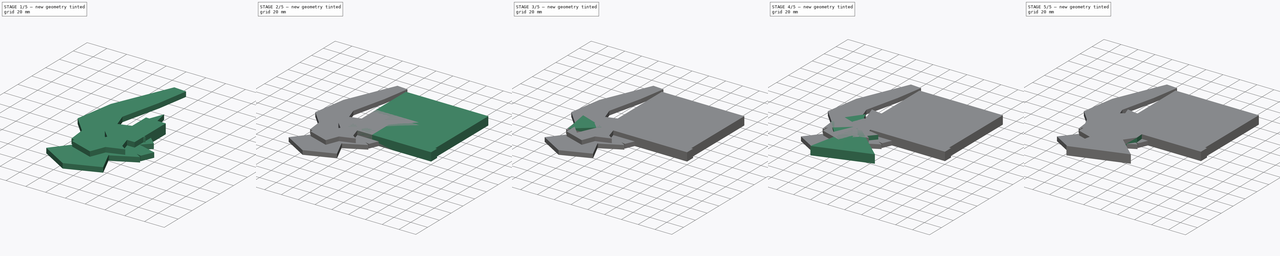
[diagram: build sequence overview — one tinted view per stage of 5, left to right]
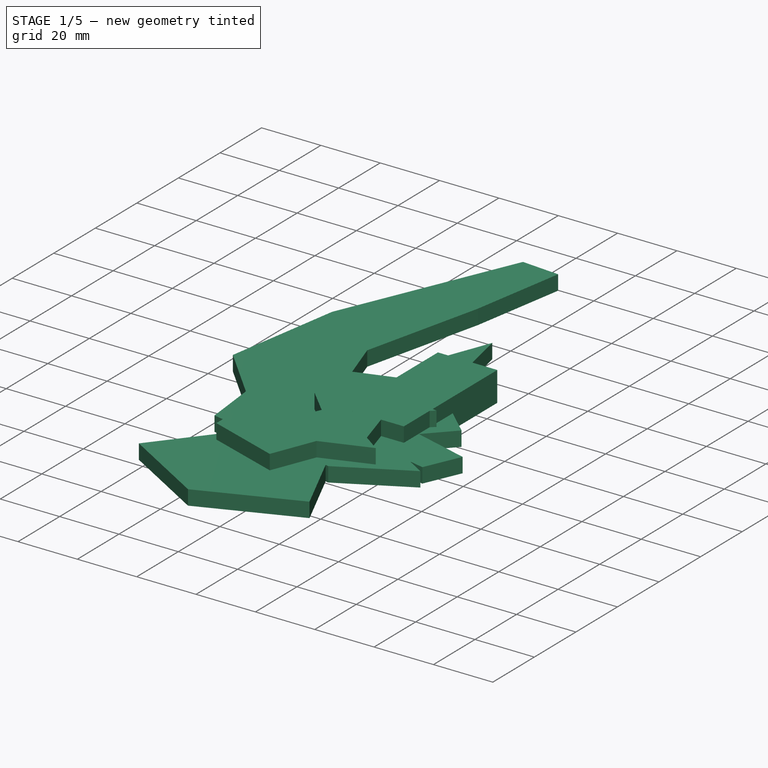
[diagram: stage 1 of 5 — iso view after this stage's code; geometry added in this stage tinted green]
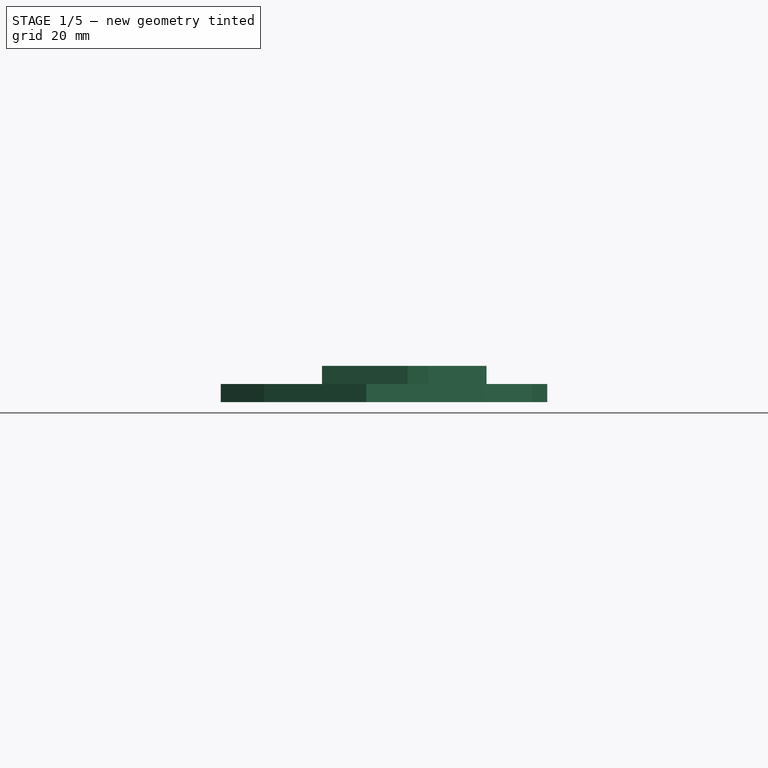
[diagram: stage 1 of 5 — front view after this stage's code; geometry added in this stage tinted green]
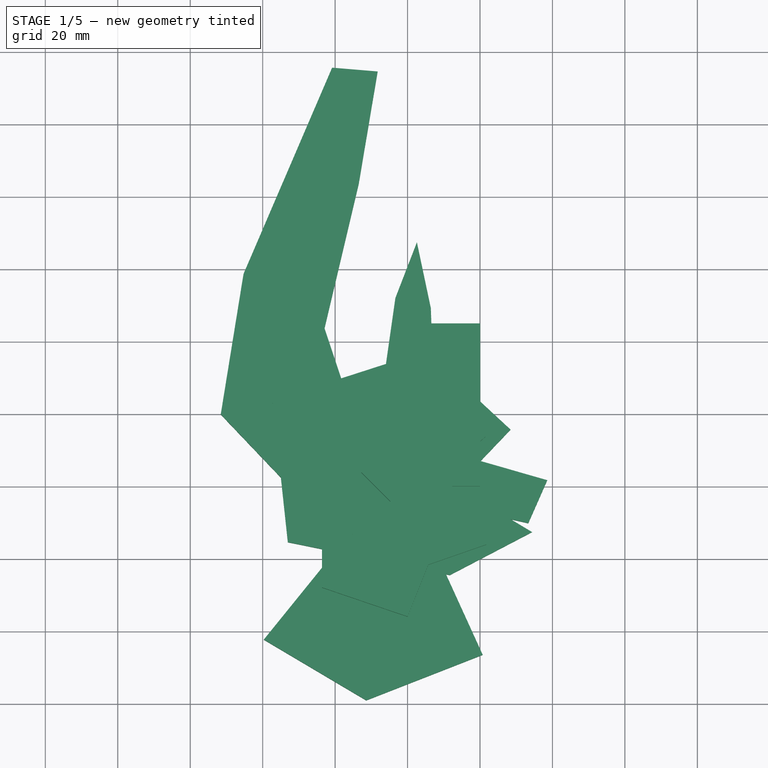
[diagram: stage 1 of 5 — top view after this stage's code; geometry added in this stage tinted green]
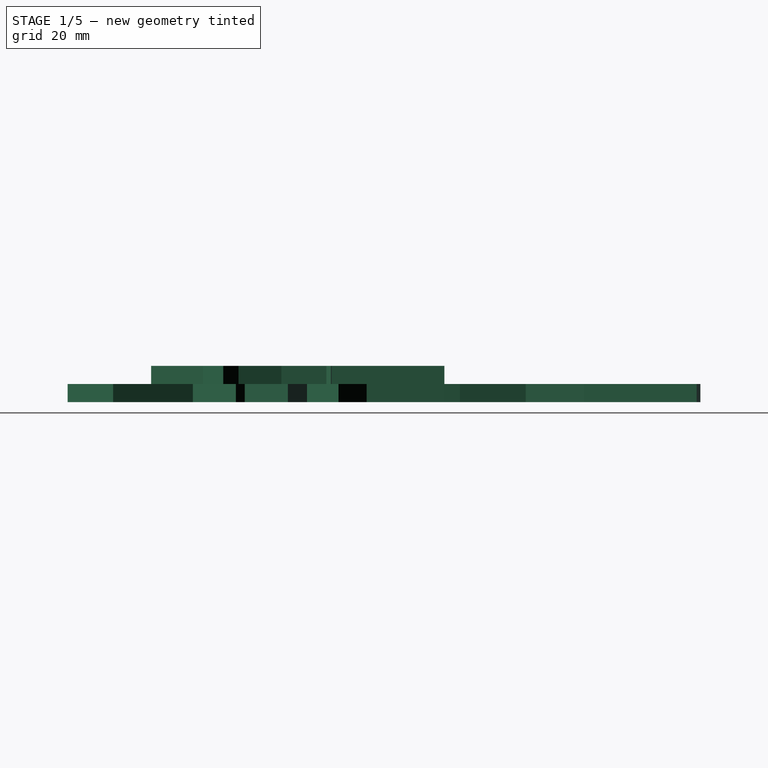
[diagram: stage 1 of 5 — right view after this stage's code; geometry added in this stage tinted green]
FCSTD DOCUMENT  (FreeCAD 0.19R)
Label: Mix
License: All rights reserved
LicenseURL: http://en.wikipedia.org/wiki/All_rights_reserved
objects: Sketcher::SketchObject×40, PartDesign::Pad×39, PartDesign::Body×38
note: 156 computed .brp shape members not serialized (recipe doc carries the construction recipe); baked Part::Feature solids carry a one-line shape summary decoded from their .brp

FEATURE [PartDesign::Body] Body019
  Group = -> [Sketch021,Pad019]
  Origin = -> Origin018
  Tip = -> Pad019
FEATURE [PartDesign::Pad] Pad020
  Direction = (1,1,1)
  Length = 10
  Length2 = 100
  Profile = -> Sketch020
  Type = 0
FEATURE [PartDesign::Body] Body028
  Group = -> [Sketch031,Pad018]
  Origin = -> Origin019
  Tip = -> Pad018
FEATURE [Sketcher::SketchObject] Sketch032
  FullyConstrained = false
  MapMode = 5
  Support = -> [XY_Plane035]
  sketch-geometry (7):
    g0: LineSegment StartX=13.409 StartY=0 StartZ=0 EndX=28.4323 EndY=15.7395 EndZ=0
    g1: LineSegment StartX=28.4323 StartY=15.7395 StartZ=0 EndX=5.02388 EndY=37.401 EndZ=0
    g2: LineSegment StartX=5.02388 StartY=37.401 StartZ=0 EndX=-37.251 EndY=23.7752 EndZ=0
    g3: LineSegment StartX=-37.251 StartY=23.7752 StartZ=0 EndX=-33.0585 EndY=-15.3553 EndZ=0
    g4: LineSegment StartX=-33.0585 StartY=-15.3553 StartZ=0 EndX=11.6621 EndY=-24.4391 EndZ=0
    g5: LineSegment StartX=11.6621 StartY=-24.4391 StartZ=0 EndX=34.3717 EndY=-12.5602 EndZ=0
    g6: LineSegment StartX=34.3717 StartY=-12.5602 StartZ=0 EndX=13.409 EndY=0 EndZ=0
  constraints (8):
    c: PointOnObject(g0,g-1)
    c: Coincident(g0,g1)
    c: Coincident(g1,g2)
    c: Coincident(g2,g3)
    c: Coincident(g3,g4)
    c: Coincident(g4,g5)
    c: Coincident(g5,g6)
    c: Coincident(g6,g0)
FEATURE [PartDesign::Pad] Pad033
  Direction = (1,1,1)
  Length = 5
  Length2 = 100
  Profile = -> Sketch032
  Type = 0
FEATURE [PartDesign::Body] Body033
  Group = -> [Sketch032,Pad033]
  Origin = -> Origin031
  Placement = pos=(37.251,24.4391,0) rot=(0,0,1;0rad)
  Tip = -> Pad033
FEATURE [Sketcher::SketchObject] Sketch033
  FullyConstrained = false
  MapMode = 5
  Support = -> [XY_Plane033]
  sketch-geometry (13):
    g0: LineSegment StartX=9.91519 StartY=-22.6922 StartZ=0 EndX=22.8422 EndY=-12.5602 EndZ=0
    g1: LineSegment StartX=22.8422 StartY=-12.5602 StartZ=0 EndX=19.3484 EndY=-4.52451 EndZ=0
    g2: LineSegment StartX=19.3484 StartY=-4.52451 StartZ=0 EndX=8.51767 EndY=8.05315 EndZ=0
    g3: LineSegment StartX=8.51767 StartY=8.05315 StartZ=0 EndX=7.12016 EndY=29.3653 EndZ=0
    g4: LineSegment StartX=7.12016 StartY=29.3653 StartZ=0 EndX=6.4214 EndY=49.2799 EndZ=0
    g5: LineSegment StartX=6.4214 StartY=49.2799 StartZ=0 EndX=2.57822 EndY=67.4476 EndZ=0
    g6: LineSegment StartX=2.57822 StartY=67.4476 StartZ=0 EndX=-3.36123 EndY=52.075 EndZ=0
    g7: LineSegment StartX=-3.36123 StartY=52.075 StartZ=0 EndX=-6.50564 EndY=30.064 EndZ=0
    g8: LineSegment StartX=-6.50564 StartY=30.064 StartZ=0 EndX=-15.9389 EndY=-12.9096 EndZ=0
    g9: LineSegment StartX=-15.9389 StartY=-12.9096 StartZ=0 EndX=-39.6967 EndY=-42.2575 EndZ=0
    g10: LineSegment StartX=-39.6967 StartY=-42.2575 StartZ=0 EndX=-11.3969 EndY=-59.0277 EndZ=0
    g11: LineSegment StartX=-11.3969 StartY=-59.0277 StartZ=0 EndX=20.746 EndY=-46.45 EndZ=0
    g12: LineSegment StartX=20.746 StartY=-46.45 StartZ=0 EndX=9.91519 EndY=-22.6922 EndZ=0
  constraints (13):
    c: Coincident(g0,g1)
    c: Coincident(g1,g2)
    c: Coincident(g2,g3)
    c: Coincident(g3,g4)
    c: Coincident(g4,g5)
    c: Coincident(g5,g6)
    c: Coincident(g6,g7)
    c: Coincident(g7,g8)
    c: Coincident(g8,g9)
    c: Coincident(g9,g10)
    c: Coincident(g10,g11)
    c: Coincident(g11,g12)
    c: Coincident(g12,g0)
FEATURE [Sketcher::SketchObject] Sketch034
  FullyConstrained = false
  MapMode = 5
  Support = -> [XY_Plane031]
  sketch-geometry (12):
    g0: LineSegment StartX=15.8546 StartY=-11.8615 StartZ=0 EndX=10.9633 EndY=4.55936 EndZ=0
    g1: LineSegment StartX=10.9633 StartY=4.55936 StartZ=0 EndX=21.4447 EndY=13.6432 EndZ=0
    g2: LineSegment StartX=21.4447 StartY=13.6432 StartZ=0 EndX=-7.20441 EndY=17.8358 EndZ=0
    g3: LineSegment StartX=-7.20441 StartY=17.8358 StartZ=0 EndX=-12.7945 EndY=3.8606 EndZ=0
    g4: LineSegment StartX=-12.7945 StartY=3.8606 StartZ=0 EndX=-4.75875 EndY=-4.17513 EndZ=0
    g5: LineSegment StartX=-4.75875 StartY=-4.17513 StartZ=0 EndX=-13.8426 EndY=-24.4391 EndZ=0
    g6: LineSegment StartX=-13.8426 StartY=-24.4391 StartZ=0 EndX=-23.6252 EndY=-14.3071 EndZ=0
    g7: LineSegment StartX=-23.6252 StartY=-14.3071 StartZ=0 EndX=-23.6252 EndY=-27.9329 EndZ=0
    g8: LineSegment StartX=-23.6252 StartY=-27.9329 StartZ=0 EndX=0 EndY=-35.9686 EndZ=0
    g9: LineSegment StartX=0 StartY=-35.9686 StartZ=0 EndX=5.72263 EndY=-21.6441 EndZ=0
    g10: LineSegment StartX=5.72263 StartY=-21.6441 StartZ=0 EndX=21.7941 EndY=-16.054 EndZ=0
    g11: LineSegment StartX=21.7941 StartY=-16.054 StartZ=0 EndX=15.8546 EndY=-11.8615 EndZ=0
  constraints (14):
    c: Coincident(g0,g1)
    c: Coincident(g1,g2)
    c: Coincident(g2,g3)
    c: Coincident(g3,g4)
    c: Coincident(g4,g5)
    c: Coincident(g5,g6)
    c: Coincident(g6,g7)
    c: Vertical(g7)
    c: Coincident(g7,g8)
    c: PointOnObject(g8,g-2)
    c: Coincident(g8,g9)
    c: Coincident(g9,g10)
    c: Coincident(g10,g11)
    c: Coincident(g11,g0)
FEATURE [PartDesign::Pad] Pad032
  Direction = (1,1,1)
  Length = 10
  Length2 = 100
  Profile = -> Sketch034
  Type = 0
FEATURE [PartDesign::Body] Body031
  Group = -> [Sketch034,Pad032]
  Origin = -> Origin034
  Placement = pos=(23.6252,35.9686,0) rot=(0,0,1;0rad)
  Tip = -> Pad032
FEATURE [Sketcher::SketchObject] Sketch035
  FullyConstrained = false
  MapMode = 5
  Support = -> [XY_Plane034]
  sketch-geometry (12):
    g0: LineSegment StartX=13.7584 StartY=0 StartZ=0 EndX=12.0115 EndY=9.80005 EndZ=0
    g1: LineSegment StartX=12.0115 StartY=9.80005 StartZ=0 EndX=-4.40937 EndY=11.8963 EndZ=0
    g2: LineSegment StartX=-4.40937 StartY=11.8963 StartZ=0 EndX=-28.5165 EndY=11.8963 EndZ=0
    g3: LineSegment StartX=-28.5165 StartY=11.8963 StartZ=0 EndX=-29.5647 EndY=0 EndZ=0
    g4: LineSegment StartX=-29.5647 StartY=0 StartZ=0 EndX=-24.6734 EndY=-3.47636 EndZ=0
    g5: LineSegment StartX=-24.6734 StartY=-3.47636 StartZ=0 EndX=-26.7696 EndY=-16.7528 EndZ=0
    g6: LineSegment StartX=-26.7696 StartY=-16.7528 StartZ=0 EndX=-8.6019 EndY=-11.1627 EndZ=0
    g7: LineSegment StartX=-8.6019 StartY=-11.1627 StartZ=0 EndX=4.32512 EndY=-16.054 EndZ=0
    g8: LineSegment StartX=4.32512 StartY=-16.054 StartZ=0 EndX=16.5534 EndY=-8.71706 EndZ=0
    g9: LineSegment StartX=16.5534 StartY=-8.71706 StartZ=0 EndX=24.2397 EndY=-11.5121 EndZ=0
    g10: LineSegment StartX=24.2397 StartY=-11.5121 StartZ=0 EndX=21.4447 EndY=-2.77761 EndZ=0
    g11: LineSegment StartX=21.4447 StartY=-2.77761 StartZ=0 EndX=13.7584 EndY=0 EndZ=0
  constraints (15):
    c: PointOnObject(g0,g-1)
    c: Coincident(g0,g1)
    c: Coincident(g1,g2)
    c: Horizontal(g2)
    c: Coincident(g2,g3)
    c: PointOnObject(g3,g-1)
    c: Coincident(g3,g4)
    c: Coincident(g4,g5)
    c: Coincident(g5,g6)
    c: Coincident(g6,g7)
    c: Coincident(g7,g8)
    c: Coincident(g8,g9)
    c: Coincident(g9,g10)
    c: Coincident(g10,g11)
    c: Coincident(g11,g0)
FEATURE [Sketcher::SketchObject] Sketch036
  FullyConstrained = false
  MapMode = 5
  Support = -> [XY_Plane032]
  sketch-geometry (8):
    g0: LineSegment StartX=16.4078 StartY=0 StartZ=0 EndX=14.21 EndY=9.29201 EndZ=0
    g1: LineSegment StartX=14.21 StartY=9.29201 StartZ=0 EndX=7.45958 EndY=7.40817 EndZ=0
    g2: LineSegment StartX=7.45958 StartY=7.40817 StartZ=0 EndX=-1.80261 EndY=16.6704 EndZ=0
    g3: LineSegment StartX=-1.80261 StartY=16.6704 StartZ=0 EndX=-17.3443 EndY=4.26845 EndZ=0
    g4: LineSegment StartX=-17.3443 StartY=4.26845 StartZ=0 EndX=-13.5766 EndY=-9.86031 EndZ=0
    g5: LineSegment StartX=-13.5766 StartY=-9.86031 StartZ=0 EndX=5.10478 EndY=-3.26689 EndZ=0
    g6: LineSegment StartX=5.10478 StartY=-3.26689 StartZ=0 EndX=11.8552 EndY=-6.09264 EndZ=0
    g7: LineSegment StartX=11.8552 StartY=-6.09264 StartZ=0 EndX=16.4078 EndY=0 EndZ=0
  constraints (9):
    c: PointOnObject(g0,g-1)
    c: Coincident(g0,g1)
    c: Coincident(g1,g2)
    c: Coincident(g2,g3)
    c: Coincident(g3,g4)
    c: Coincident(g4,g5)
    c: Coincident(g5,g6)
    c: Coincident(g6,g7)
    c: Coincident(g7,g0)
FEATURE [PartDesign::Pad] Pad035
  Direction = (1,1,1)
  Length = 5
  Length2 = 100
  Profile = -> Sketch036
  Type = 0
FEATURE [Sketcher::SketchObject] Sketch037
  FullyConstrained = true
  MapMode = 5
  Support = -> [XY_Plane032]
FEATURE [PartDesign::Body] Body032
  Group = -> [Sketch036,Pad035,Sketch037]
  Origin = -> Origin035
  Placement = pos=(17.3443,9.86031,0) rot=(0,0,1;0rad)
  Tip = -> Pad035
FEATURE [PartDesign::Pad] Pad036
  Direction = (1,1,1)
  Length = 5
  Length2 = 100
  Profile = -> Sketch033
  Type = 0
FEATURE [PartDesign::Body] Body035
  Group = -> [Sketch033,Pad036]
  Origin = -> Origin033
  Placement = pos=(39.6967,59.0277,0) rot=(0,0,1;0rad)
  Tip = -> Pad036
FEATURE [Sketcher::SketchObject] Sketch038
  FullyConstrained = false
  MapMode = 5
  Support = -> [XY_Plane036]
  sketch-geometry (10):
    g0: LineSegment StartX=0 StartY=23.4258 StartZ=0 EndX=7.12016 EndY=10.4988 EndZ=0
    g1: LineSegment StartX=7.12016 StartY=10.4988 StartZ=0 EndX=22.4928 EndY=9.45067 EndZ=0
    g2: LineSegment StartX=22.4928 StartY=9.45067 StartZ=0 EndX=8.16829 EndY=-2.07885 EndZ=0
    g3: LineSegment StartX=8.16829 StartY=-2.07885 StartZ=0 EndX=14.1077 EndY=-16.7528 EndZ=0
    g4: LineSegment StartX=14.1077 StartY=-16.7528 StartZ=0 EndX=0 EndY=-10.1146 EndZ=0
    g5: LineSegment StartX=0 StartY=-10.1146 StartZ=0 EndX=-11.0476 EndY=-18.1503 EndZ=0
    g6: LineSegment StartX=-11.0476 StartY=-18.1503 StartZ=0 EndX=-7.90316 EndY=0 EndZ=0
    g7: LineSegment StartX=-7.90316 StartY=0 StartZ=0 EndX=-19.0833 EndY=10.4988 EndZ=0
    g8: LineSegment StartX=-19.0833 StartY=10.4988 StartZ=0 EndX=-6.50564 EndY=10.4988 EndZ=0
    g9: LineSegment StartX=-6.50564 StartY=10.4988 StartZ=0 EndX=0 EndY=23.4258 EndZ=0
  constraints (14):
    c: PointOnObject(g0,g-2)
    c: Coincident(g0,g1)
    c: Coincident(g1,g2)
    c: Coincident(g2,g3)
    c: Coincident(g3,g4)
    c: PointOnObject(g4,g-2)
    c: Coincident(g4,g5)
    c: Coincident(g5,g6)
    c: PointOnObject(g6,g-1)
    c: Coincident(g6,g7)
    c: Coincident(g7,g8)
    c: Horizontal(g8)
    c: Coincident(g8,g9)
    c: Coincident(g9,g0)
FEATURE [PartDesign::Pad] Pad034
  Direction = (1,1,1)
  Length = 5
  Length2 = 100
  Profile = -> Sketch038
  Type = 0
FEATURE [PartDesign::Body] Body036
  Group = -> [Sketch038,Pad034]
  Origin = -> Origin036
  Placement = pos=(19.0833,18.1503,0) rot=(0,0,1;0rad)
  Tip = -> Pad034
FEATURE [PartDesign::Pad] Pad037
  Direction = (1,1,1)
  Length = 5
  Length2 = 100
  Profile = -> Sketch035
  Type = 0
FEATURE [PartDesign::Body] Body034
  Group = -> [Sketch035,Pad037]
  Origin = -> Origin032
  Placement = pos=(29.5647,16.7528,0) rot=(0,0,1;0rad)
  Tip = -> Pad037
FEATURE [Sketcher::SketchObject] Sketch039
  FullyConstrained = false
  MapMode = 5
  Support = -> [XY_Plane037]
  sketch-geometry (13):
    g0: LineSegment StartX=22.4928 StartY=-7.66892 StartZ=0 EndX=-6.15626 EndY=-9.06644 EndZ=0
    g1: LineSegment StartX=-6.15626 StartY=-9.06644 StartZ=0 EndX=-30.6128 EndY=-2.07885 EndZ=0
    g2: LineSegment StartX=-30.6128 StartY=-2.07885 StartZ=0 EndX=-51.5756 EndY=19.9321 EndZ=0
    g3: LineSegment StartX=-51.5756 StartY=19.9321 StartZ=0 EndX=-45.2867 EndY=58.7132 EndZ=0
    g4: LineSegment StartX=-45.2867 StartY=58.7132 StartZ=0 EndX=-20.8302 EndY=115.662 EndZ=0
    g5: LineSegment StartX=-20.8302 StartY=115.662 StartZ=0 EndX=-8.25252 EndY=114.614 EndZ=0
    g6: LineSegment StartX=-8.25252 StartY=114.614 StartZ=0 EndX=-13.4932 EndY=83.5191 EndZ=0
    g7: LineSegment StartX=-13.4932 StartY=83.5191 StartZ=0 EndX=-22.9265 EndY=43.6898 EndZ=0
    g8: LineSegment StartX=-22.9265 StartY=43.6898 StartZ=0 EndX=-13.8426 EndY=16.4383 EndZ=0
    g9: LineSegment StartX=-13.8426 StartY=16.4383 StartZ=0 EndX=10.6139 EndY=9.80005 EndZ=0
    g10: LineSegment StartX=10.6139 StartY=9.80005 StartZ=0 EndX=38.5643 EndY=1.76432 EndZ=0
    g11: LineSegment StartX=38.5643 StartY=1.76432 StartZ=0 EndX=33.3236 EndY=-10.1146 EndZ=0
    g12: LineSegment StartX=33.3236 StartY=-10.1146 StartZ=0 EndX=22.4928 EndY=-7.66892 EndZ=0
  constraints (13):
    c: Coincident(g0,g1)
    c: Coincident(g1,g2)
    c: Coincident(g2,g3)
    c: Coincident(g3,g4)
    c: Coincident(g4,g5)
    c: Coincident(g5,g6)
    c: Coincident(g6,g7)
    c: Coincident(g7,g8)
    c: Coincident(g8,g9)
    c: Coincident(g9,g10)
    c: Coincident(g10,g11)
    c: Coincident(g11,g12)
    c: Coincident(g12,g0)
FEATURE [PartDesign::Pad] Pad038
  Direction = (1,1,1)
  Length = 5
  Length2 = 100
  Profile = -> Sketch039
  Type = 0
FEATURE [PartDesign::Body] Body037
  Group = -> [Sketch039,Pad038]
  Origin = -> Origin037
  Placement = pos=(51.5756,10.1146,0) rot=(0,0,1;0rad)
  Tip = -> Pad038
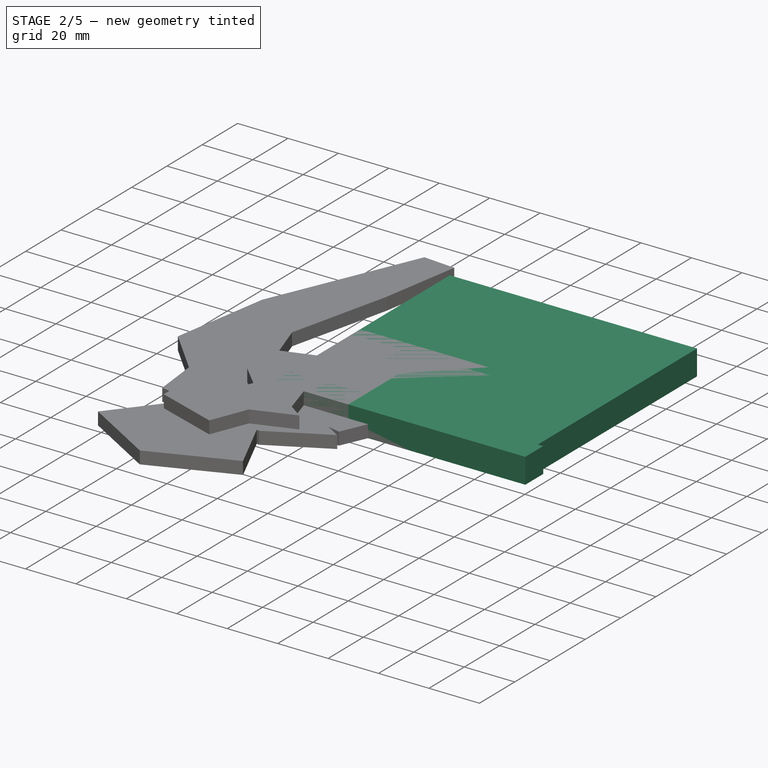
[diagram: stage 2 of 5 — iso view after this stage's code; geometry added in this stage tinted green]
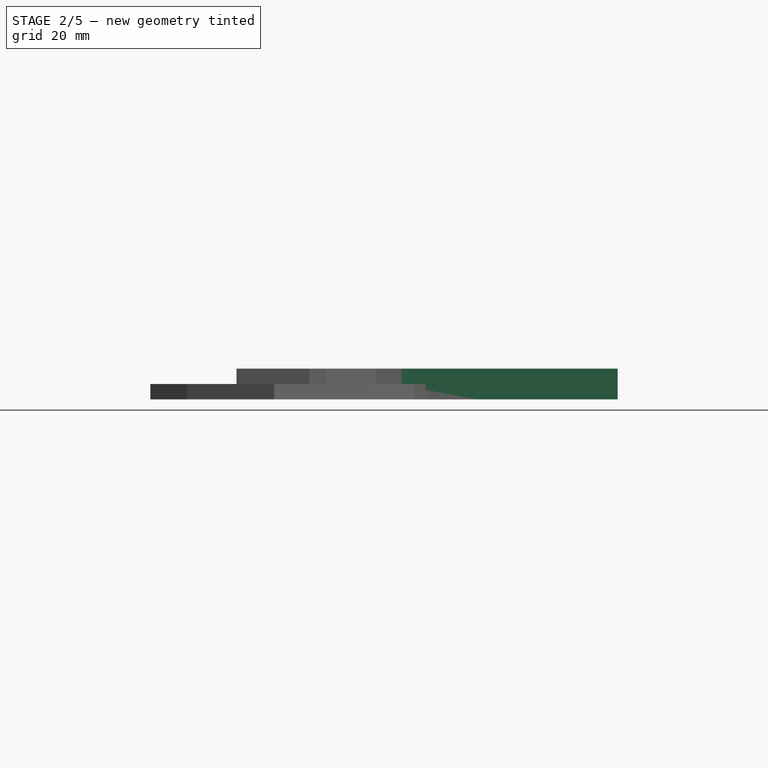
[diagram: stage 2 of 5 — front view after this stage's code; geometry added in this stage tinted green]
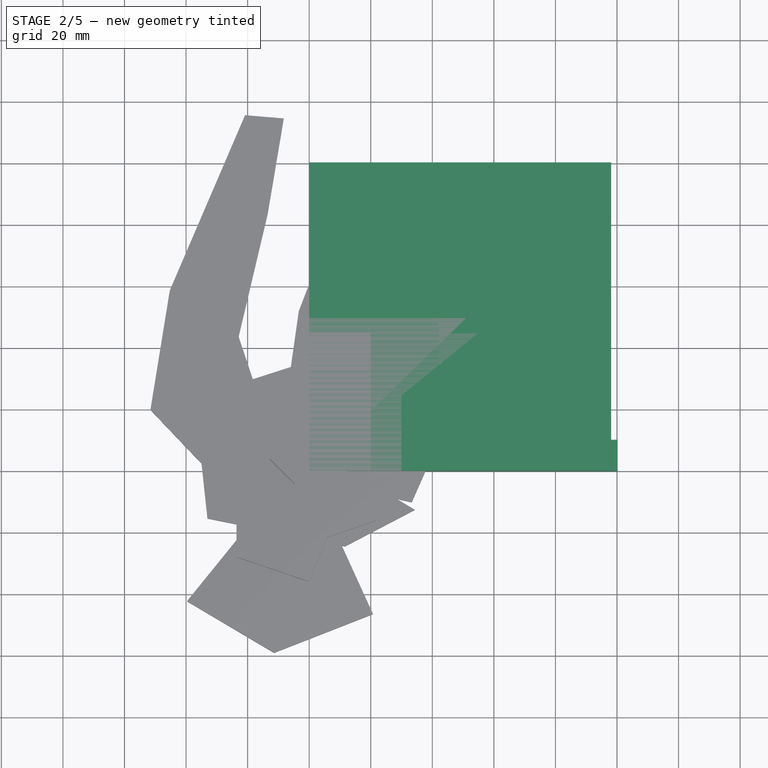
[diagram: stage 2 of 5 — top view after this stage's code; geometry added in this stage tinted green]
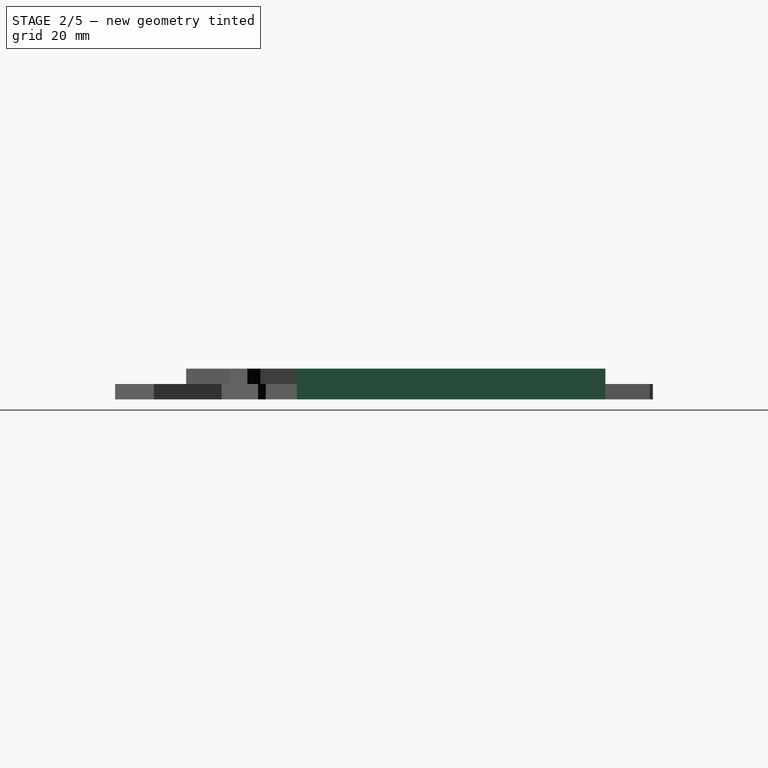
[diagram: stage 2 of 5 — right view after this stage's code; geometry added in this stage tinted green]
FEATURE [PartDesign::Body] Body024
  Group = -> [Sketch026,Pad022]
  Origin = -> Origin023
  Tip = -> Pad022
FEATURE [PartDesign::Pad] Pad028
  Direction = (1,1,1)
  Length = 10
  Length2 = 100
  Profile = -> Sketch023
  Type = 0
FEATURE [Sketcher::SketchObject] Sketch027
  FullyConstrained = false
  MapMode = 5
  Support = -> [XY_Plane026]
  sketch-geometry (4):
    g0: LineSegment StartX=0 StartY=0 StartZ=0 EndX=98.0894 EndY=0 EndZ=0
    g1: LineSegment StartX=98.0894 StartY=0 StartZ=0 EndX=98.0894 EndY=100.252 EndZ=0
    g2: LineSegment StartX=98.0894 StartY=100.252 StartZ=0 EndX=0 EndY=100.252 EndZ=0
    g3: LineSegment StartX=0 StartY=100.252 StartZ=0 EndX=0 EndY=0 EndZ=0
  constraints (9):
    c: Coincident(g0,g1)
    c: Coincident(g1,g2)
    c: Coincident(g2,g3)
    c: Coincident(g3,g0)
    c: Horizontal(g0)
    c: Horizontal(g2)
    c: Vertical(g1)
    c: Vertical(g3)
    c: Coincident(g0,g-1)
FEATURE [PartDesign::Pad] Pad026
  Direction = (1,1,1)
  Length = 10
  Length2 = 100
  Profile = -> Sketch027
  Type = 0
FEATURE [PartDesign::Body] Body025
  Group = -> [Sketch027,Pad026]
  Origin = -> Origin026
  Tip = -> Pad026
FEATURE [Sketcher::SketchObject] Sketch028
  FullyConstrained = false
  MapMode = 5
  Support = -> [XY_Plane021]
  sketch-geometry (4):
    g0: LineSegment StartX=0 StartY=0 StartZ=0 EndX=29.9606 EndY=0 EndZ=0
    g1: LineSegment StartX=29.9606 StartY=0 StartZ=0 EndX=29.9606 EndY=30.0272 EndZ=0
    g2: LineSegment StartX=29.9606 StartY=30.0272 StartZ=0 EndX=0 EndY=30.0272 EndZ=0
    g3: LineSegment StartX=0 StartY=30.0272 StartZ=0 EndX=0 EndY=0 EndZ=0
  constraints (9):
    c: Coincident(g0,g1)
    c: Coincident(g1,g2)
    c: Coincident(g2,g3)
    c: Coincident(g3,g0)
    c: Horizontal(g0)
    c: Horizontal(g2)
    c: Vertical(g1)
    c: Vertical(g3)
    c: Coincident(g0,g-1)
FEATURE [PartDesign::Pad] Pad027
  Direction = (1,1,1)
  Length = 10
  Length2 = 100
  Profile = -> Sketch028
  Type = 0
FEATURE [PartDesign::Body] Body022
  Group = -> [Sketch028,Pad027]
  Origin = -> Origin027
  Tip = -> Pad027
FEATURE [Sketcher::SketchObject] Sketch029
  FullyConstrained = false
  MapMode = 5
  Support = -> [XY_Plane023]
  sketch-geometry (4):
    g0: LineSegment StartX=0 StartY=0 StartZ=0 EndX=29.9606 EndY=0 EndZ=0
    g1: LineSegment StartX=29.9606 StartY=0 StartZ=0 EndX=29.9606 EndY=30.0272 EndZ=0
    g2: LineSegment StartX=29.9606 StartY=30.0272 StartZ=0 EndX=0 EndY=30.0272 EndZ=0
    g3: LineSegment StartX=0 StartY=30.0272 StartZ=0 EndX=0 EndY=0 EndZ=0
  constraints (9):
    c: Coincident(g0,g1)
    c: Coincident(g1,g2)
    c: Coincident(g2,g3)
    c: Coincident(g3,g0)
    c: Horizontal(g0)
    c: Horizontal(g2)
    c: Vertical(g1)
    c: Vertical(g3)
    c: Coincident(g0,g-1)
FEATURE [PartDesign::Pad] Pad021
  Direction = (1,1,1)
  Length = 10
  Length2 = 100
  Profile = -> Sketch029
  Type = 0
FEATURE [PartDesign::Body] Body018
  Group = -> [Sketch030,Pad024]
  Origin = -> Origin020
  Tip = -> Pad024
FEATURE [PartDesign::Pad] Pad029
  Direction = (1,1,1)
  Length = 10
  Length2 = 100
  Profile = -> Sketch019
  Type = 0
FEATURE [PartDesign::Body] Body020
  Group = -> [Sketch019,Pad029]
  Origin = -> Origin022
  Tip = -> Pad029
FEATURE [PartDesign::Pad] Pad030
  Direction = (1,1,1)
  Length = 10
  Length2 = 100
  Profile = -> Sketch022
  Type = 0
FEATURE [PartDesign::Body] Body023
  Group = -> [Sketch022,Pad030]
  Origin = -> Origin030
  Tip = -> Pad030
FEATURE [PartDesign::Body] Body026
  Group = -> [Sketch029,Pad021]
  Origin = -> Origin029
  Tip = -> Pad021
FEATURE [PartDesign::Pad] Pad031
  Direction = (1,1,1)
  Length = 10
  Length2 = 100
  Profile = -> Sketch024
  Type = 0
FEATURE [PartDesign::Body] Body027
  Group = -> [Sketch024,Pad031]
  Origin = -> Origin017
  Tip = -> Pad031
FEATURE [PartDesign::Body] Body029
  Group = -> [Sketch023,Pad028]
  Origin = -> Origin021
  Tip = -> Pad028
FEATURE [PartDesign::Body] Body030
  Group = -> [Sketch020,Pad020]
  Origin = -> Origin028
  Tip = -> Pad020
FEATURE [Sketcher::SketchObject] Sketch031
  FullyConstrained = false
  MapMode = 5
  Support = -> [XY_Plane020]
  sketch-geometry (4):
    g0: LineSegment StartX=0 StartY=0 StartZ=0 EndX=42.1888 EndY=0 EndZ=0
    g1: LineSegment StartX=42.1888 StartY=0 StartZ=0 EndX=42.1888 EndY=78.2414 EndZ=0
    g2: LineSegment StartX=42.1888 StartY=78.2414 StartZ=0 EndX=0 EndY=78.2414 EndZ=0
    g3: LineSegment StartX=0 StartY=78.2414 StartZ=0 EndX=0 EndY=0 EndZ=0
  constraints (9):
    c: Coincident(g0,g1)
    c: Coincident(g1,g2)
    c: Coincident(g2,g3)
    c: Coincident(g3,g0)
    c: Horizontal(g0)
    c: Horizontal(g2)
    c: Vertical(g1)
    c: Vertical(g3)
    c: Coincident(g0,g-1)
FEATURE [PartDesign::Pad] Pad018
  Direction = (1,1,1)
  Length = 10
  Length2 = 100
  Profile = -> Sketch031
  Type = 0
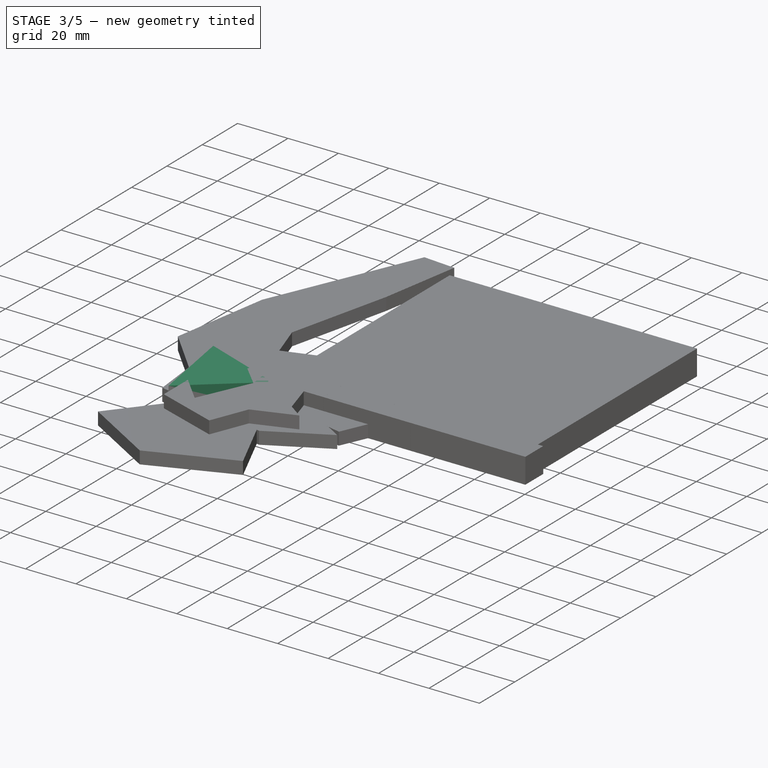
[diagram: stage 3 of 5 — iso view after this stage's code; geometry added in this stage tinted green]
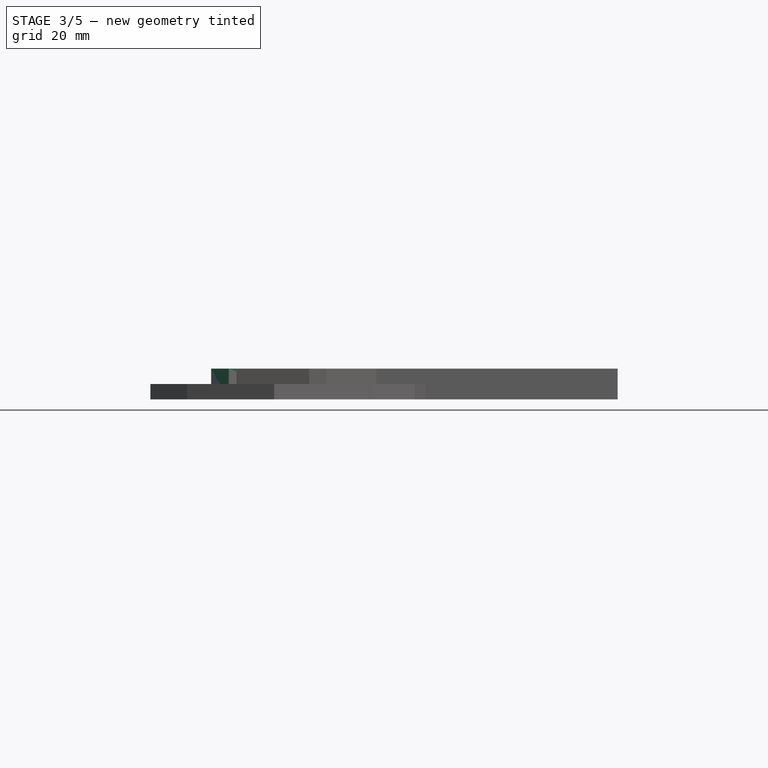
[diagram: stage 3 of 5 — front view after this stage's code; geometry added in this stage tinted green]
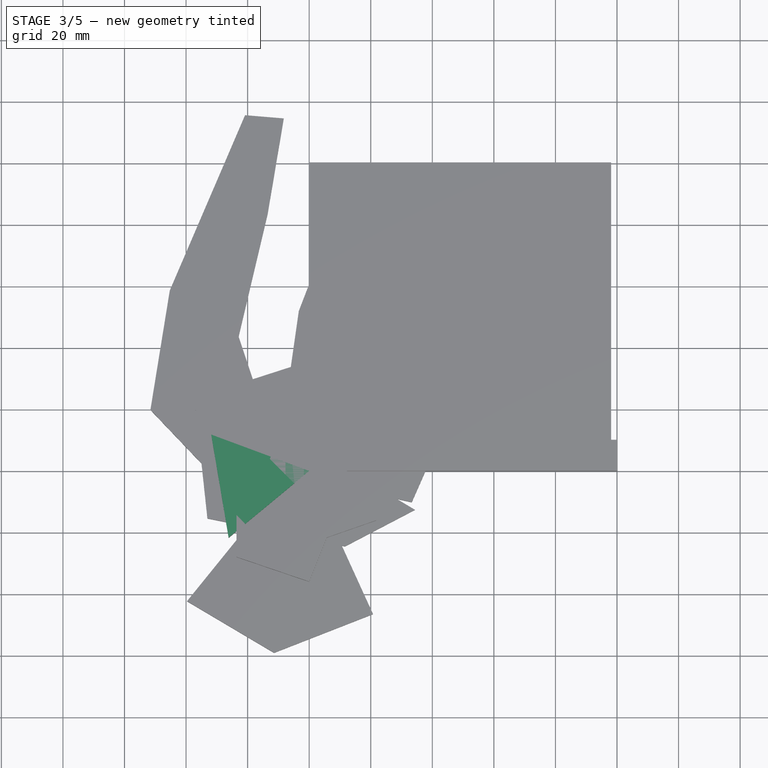
[diagram: stage 3 of 5 — top view after this stage's code; geometry added in this stage tinted green]
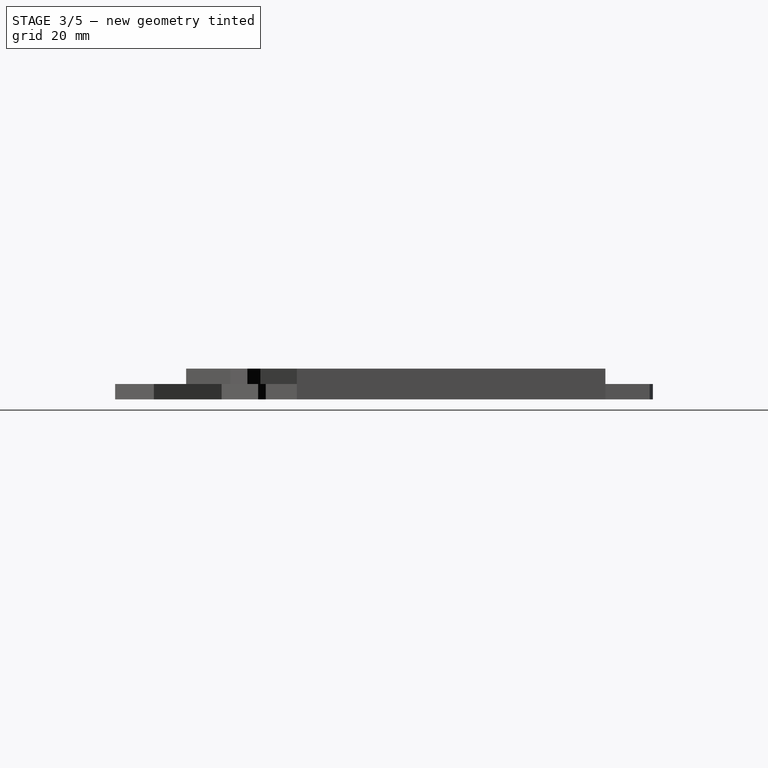
[diagram: stage 3 of 5 — right view after this stage's code; geometry added in this stage tinted green]
FEATURE [PartDesign::Body] Body014
  Group = -> [Sketch015,Pad015]
  Origin = -> Origin014
  Placement = pos=(31.8356,21.6645,0) rot=(0,0,1;0rad)
  Tip = -> Pad015
FEATURE [Sketcher::SketchObject] Sketch016
  FullyConstrained = false
  MapMode = 5
  Support = -> [XY_Plane015]
  sketch-geometry (4):
    g0: LineSegment StartX=0 StartY=0 StartZ=0 EndX=-31.8356 EndY=11.8118 EndZ=0
    g1: LineSegment StartX=-31.8356 StartY=11.8118 StartZ=0 EndX=-26.1471 EndY=-21.6645 EndZ=0
    g2: LineSegment StartX=-26.1471 StartY=-21.6645 StartZ=0 EndX=0 EndY=0 EndZ=0
    g3: Circle CenterX=-19.3275 CenterY=-3.28425 CenterZ=0 NormalX=0 NormalY=0 NormalZ=1 AngleXU=0 Radius=19.6046
  constraints (9):
    c: Coincident(g0,g1)
    c: Coincident(g1,g2)
    c: Coincident(g2,g0)
    c: Equal(g0,g1)
    c: Equal(g0,g2)
    c: PointOnObject(g0,g3)
    c: PointOnObject(g1,g3)
    c: PointOnObject(g2,g3)
    c: Coincident(g2,g-1)
FEATURE [PartDesign::Pad] Pad016
  Direction = (1,1,1)
  Length = 10
  Length2 = 100
  Profile = -> Sketch016
  Type = 0
FEATURE [PartDesign::Body] Body015
  Group = -> [Sketch016,Pad016]
  Origin = -> Origin015
  Placement = pos=(31.8356,21.6645,0) rot=(0,0,1;0rad)
  Tip = -> Pad016
FEATURE [Sketcher::SketchObject] Sketch017
  FullyConstrained = false
  MapMode = 5
  Support = -> [XY_Plane016]
  sketch-geometry (4):
    g0: LineSegment StartX=0 StartY=0 StartZ=0 EndX=-31.8356 EndY=11.8118 EndZ=0
    g1: LineSegment StartX=-31.8356 StartY=11.8118 StartZ=0 EndX=-26.1471 EndY=-21.6645 EndZ=0
    g2: LineSegment StartX=-26.1471 StartY=-21.6645 StartZ=0 EndX=0 EndY=0 EndZ=0
    g3: Circle CenterX=-19.3275 CenterY=-3.28425 CenterZ=0 NormalX=0 NormalY=0 NormalZ=1 AngleXU=0 Radius=19.6046
  constraints (9):
    c: Coincident(g0,g1)
    c: Coincident(g1,g2)
    c: Coincident(g2,g0)
    c: Equal(g0,g1)
    c: Equal(g0,g2)
    c: PointOnObject(g0,g3)
    c: PointOnObject(g1,g3)
    c: PointOnObject(g2,g3)
    c: Coincident(g2,g-1)
FEATURE [PartDesign::Pad] Pad017
  Direction = (1,1,1)
  Length = 10
  Length2 = 100
  Profile = -> Sketch017
  Type = 0
FEATURE [PartDesign::Body] Body016
  Group = -> [Sketch017,Pad017]
  Origin = -> Origin016
  Placement = pos=(31.8356,21.6645,0) rot=(0,0,1;0rad)
  Tip = -> Pad017
FEATURE [Sketcher::SketchObject] Sketch018
  FullyConstrained = false
  MapMode = 5
  Support = -> [XY_Plane027]
  sketch-geometry (4):
    g0: LineSegment StartX=0 StartY=0 StartZ=0 EndX=100.186 EndY=0 EndZ=0
    g1: LineSegment StartX=100.186 StartY=0 StartZ=0 EndX=100.186 EndY=10.1126 EndZ=0
    g2: LineSegment StartX=100.186 StartY=10.1126 StartZ=0 EndX=0 EndY=10.1126 EndZ=0
    g3: LineSegment StartX=0 StartY=10.1126 StartZ=0 EndX=0 EndY=0 EndZ=0
  constraints (9):
    c: Coincident(g0,g1)
    c: Coincident(g1,g2)
    c: Coincident(g2,g3)
    c: Coincident(g3,g0)
    c: Horizontal(g0)
    c: Horizontal(g2)
    c: Vertical(g1)
    c: Vertical(g3)
    c: Coincident(g0,g-1)
FEATURE [Sketcher::SketchObject] Sketch019
  FullyConstrained = false
  MapMode = 5
  Support = -> [XY_Plane029]
  sketch-geometry (4):
    g0: LineSegment StartX=0 StartY=0 StartZ=0 EndX=50.9233 EndY=0 EndZ=0
    g1: LineSegment StartX=50.9233 StartY=0 StartZ=0 EndX=50.9233 EndY=49.5924 EndZ=0
    g2: LineSegment StartX=50.9233 StartY=49.5924 StartZ=0 EndX=0 EndY=49.5924 EndZ=0
    g3: LineSegment StartX=0 StartY=49.5924 StartZ=0 EndX=0 EndY=0 EndZ=0
  constraints (9):
    c: Coincident(g0,g1)
    c: Coincident(g1,g2)
    c: Coincident(g2,g3)
    c: Coincident(g3,g0)
    c: Horizontal(g0)
    c: Horizontal(g2)
    c: Vertical(g1)
    c: Vertical(g3)
    c: Coincident(g0,g-1)
FEATURE [Sketcher::SketchObject] Sketch020
  FullyConstrained = false
  MapMode = 5
  Support = -> [XY_Plane019]
  sketch-geometry (4):
    g0: LineSegment StartX=0 StartY=0 StartZ=0 EndX=20.0157 EndY=0 EndZ=0
    g1: LineSegment StartX=20.0157 StartY=0 StartZ=0 EndX=20.0157 EndY=44.9765 EndZ=0
    g2: LineSegment StartX=20.0157 StartY=44.9765 StartZ=0 EndX=0 EndY=44.9765 EndZ=0
    g3: LineSegment StartX=0 StartY=44.9765 StartZ=0 EndX=0 EndY=0 EndZ=0
  constraints (9):
    c: Coincident(g0,g1)
    c: Coincident(g1,g2)
    c: Coincident(g2,g3)
    c: Coincident(g3,g0)
    c: Horizontal(g0)
    c: Horizontal(g2)
    c: Vertical(g1)
    c: Vertical(g3)
    c: Coincident(g0,g-1)
FEATURE [Sketcher::SketchObject] Sketch021
  FullyConstrained = false
  MapMode = 5
  Support = -> [XY_Plane030]
  sketch-geometry (4):
    g0: LineSegment StartX=0 StartY=0 StartZ=0 EndX=49.8752 EndY=0 EndZ=0
    g1: LineSegment StartX=49.8752 StartY=0 StartZ=0 EndX=49.8752 EndY=40.1592 EndZ=0
    g2: LineSegment StartX=49.8752 StartY=40.1592 StartZ=0 EndX=0 EndY=40.1592 EndZ=0
    g3: LineSegment StartX=0 StartY=40.1592 StartZ=0 EndX=0 EndY=0 EndZ=0
  constraints (9):
    c: Coincident(g0,g1)
    c: Coincident(g1,g2)
    c: Coincident(g2,g3)
    c: Coincident(g3,g0)
    c: Horizontal(g0)
    c: Horizontal(g2)
    c: Vertical(g1)
    c: Vertical(g3)
    c: Coincident(g0,g-1)
FEATURE [Sketcher::SketchObject] Sketch022
  FullyConstrained = false
  MapMode = 5
  Support = -> [XY_Plane017]
  sketch-geometry (4):
    g0: LineSegment StartX=0 StartY=0 StartZ=0 EndX=98.0894 EndY=0 EndZ=0
    g1: LineSegment StartX=98.0894 StartY=0 StartZ=0 EndX=98.0894 EndY=100.252 EndZ=0
    g2: LineSegment StartX=98.0894 StartY=100.252 StartZ=0 EndX=0 EndY=100.252 EndZ=0
    g3: LineSegment StartX=0 StartY=100.252 StartZ=0 EndX=0 EndY=0 EndZ=0
  constraints (9):
    c: Coincident(g0,g1)
    c: Coincident(g1,g2)
    c: Coincident(g2,g3)
    c: Coincident(g3,g0)
    c: Horizontal(g0)
    c: Horizontal(g2)
    c: Vertical(g1)
    c: Vertical(g3)
    c: Coincident(g0,g-1)
FEATURE [PartDesign::Pad] Pad019
  Direction = (1,1,1)
  Length = 10
  Length2 = 100
  Profile = -> Sketch021
  Type = 0
FEATURE [Sketcher::SketchObject] Sketch023
  FullyConstrained = false
  MapMode = 5
  Support = -> [XY_Plane028]
  sketch-geometry (4):
    g0: LineSegment StartX=0 StartY=0 StartZ=0 EndX=54.7665 EndY=0 EndZ=0
    g1: LineSegment StartX=54.7665 StartY=0 StartZ=0 EndX=54.7665 EndY=44.7011 EndZ=0
    g2: LineSegment StartX=54.7665 StartY=44.7011 StartZ=0 EndX=0 EndY=44.7011 EndZ=0
    g3: LineSegment StartX=0 StartY=44.7011 StartZ=0 EndX=0 EndY=0 EndZ=0
  constraints (9):
    c: Coincident(g0,g1)
    c: Coincident(g1,g2)
    c: Coincident(g2,g3)
    c: Coincident(g3,g0)
    c: Horizontal(g0)
    c: Horizontal(g2)
    c: Vertical(g1)
    c: Vertical(g3)
    c: Coincident(g0,g-1)
FEATURE [Sketcher::SketchObject] Sketch024
  FullyConstrained = false
  MapMode = 5
  Support = -> [XY_Plane022]
  sketch-geometry (4):
    g0: LineSegment StartX=0 StartY=0 StartZ=0 EndX=100.186 EndY=0 EndZ=0
    g1: LineSegment StartX=100.186 StartY=0 StartZ=0 EndX=100.186 EndY=10.1126 EndZ=0
    g2: LineSegment StartX=100.186 StartY=10.1126 StartZ=0 EndX=0 EndY=10.1126 EndZ=0
    g3: LineSegment StartX=0 StartY=10.1126 StartZ=0 EndX=0 EndY=0 EndZ=0
  constraints (9):
    c: Coincident(g0,g1)
    c: Coincident(g1,g2)
    c: Coincident(g2,g3)
    c: Coincident(g3,g0)
    c: Horizontal(g0)
    c: Horizontal(g2)
    c: Vertical(g1)
    c: Vertical(g3)
    c: Coincident(g0,g-1)
FEATURE [Sketcher::SketchObject] Sketch025
  FullyConstrained = false
  MapMode = 5
  Support = -> [XY_Plane024]
  sketch-geometry (4):
    g0: LineSegment StartX=0 StartY=0 StartZ=0 EndX=54.7665 EndY=0 EndZ=0
    g1: LineSegment StartX=54.7665 StartY=0 StartZ=0 EndX=54.7665 EndY=44.7011 EndZ=0
    g2: LineSegment StartX=54.7665 StartY=44.7011 StartZ=0 EndX=0 EndY=44.7011 EndZ=0
    g3: LineSegment StartX=0 StartY=44.7011 StartZ=0 EndX=0 EndY=0 EndZ=0
  constraints (9):
    c: Coincident(g0,g1)
    c: Coincident(g1,g2)
    c: Coincident(g2,g3)
    c: Coincident(g3,g0)
    c: Horizontal(g0)
    c: Horizontal(g2)
    c: Vertical(g1)
    c: Vertical(g3)
    c: Coincident(g0,g-1)
FEATURE [PartDesign::Pad] Pad023
  Direction = (1,1,1)
  Length = 10
  Length2 = 100
  Profile = -> Sketch025
  Type = 0
FEATURE [PartDesign::Body] Body021
  Group = -> [Sketch025,Pad023]
  Origin = -> Origin024
  Tip = -> Pad023
FEATURE [PartDesign::Pad] Pad025
  Direction = (1,1,1)
  Length = 10
  Length2 = 100
  Profile = -> Sketch018
  Type = 0
FEATURE [PartDesign::Body] Body017
  Group = -> [Sketch018,Pad025]
  Origin = -> Origin025
  Tip = -> Pad025
FEATURE [Sketcher::SketchObject] Sketch026
  FullyConstrained = false
  MapMode = 5
  Support = -> [XY_Plane025]
  sketch-geometry (4):
    g0: LineSegment StartX=0 StartY=0 StartZ=0 EndX=49.8752 EndY=0 EndZ=0
    g1: LineSegment StartX=49.8752 StartY=0 StartZ=0 EndX=49.8752 EndY=40.1592 EndZ=0
    g2: LineSegment StartX=49.8752 StartY=40.1592 StartZ=0 EndX=0 EndY=40.1592 EndZ=0
    g3: LineSegment StartX=0 StartY=40.1592 StartZ=0 EndX=0 EndY=0 EndZ=0
  constraints (9):
    c: Coincident(g0,g1)
    c: Coincident(g1,g2)
    c: Coincident(g2,g3)
    c: Coincident(g3,g0)
    c: Horizontal(g0)
    c: Horizontal(g2)
    c: Vertical(g1)
    c: Vertical(g3)
    c: Coincident(g0,g-1)
FEATURE [PartDesign::Pad] Pad022
  Direction = (1,1,1)
  Length = 10
  Length2 = 100
  Profile = -> Sketch026
  Type = 0
FEATURE [Sketcher::SketchObject] Sketch030
  FullyConstrained = false
  MapMode = 5
  Support = -> [XY_Plane018]
  sketch-geometry (4):
    g0: LineSegment StartX=0 StartY=0 StartZ=0 EndX=29.9606 EndY=0 EndZ=0
    g1: LineSegment StartX=29.9606 StartY=0 StartZ=0 EndX=29.9606 EndY=30.0272 EndZ=0
    g2: LineSegment StartX=29.9606 StartY=30.0272 StartZ=0 EndX=0 EndY=30.0272 EndZ=0
    g3: LineSegment StartX=0 StartY=30.0272 StartZ=0 EndX=0 EndY=0 EndZ=0
  constraints (9):
    c: Coincident(g0,g1)
    c: Coincident(g1,g2)
    c: Coincident(g2,g3)
    c: Coincident(g3,g0)
    c: Horizontal(g0)
    c: Horizontal(g2)
    c: Vertical(g1)
    c: Vertical(g3)
    c: Coincident(g0,g-1)
FEATURE [PartDesign::Pad] Pad024
  Direction = (1,1,1)
  Length = 10
  Length2 = 100
  Profile = -> Sketch030
  Type = 0
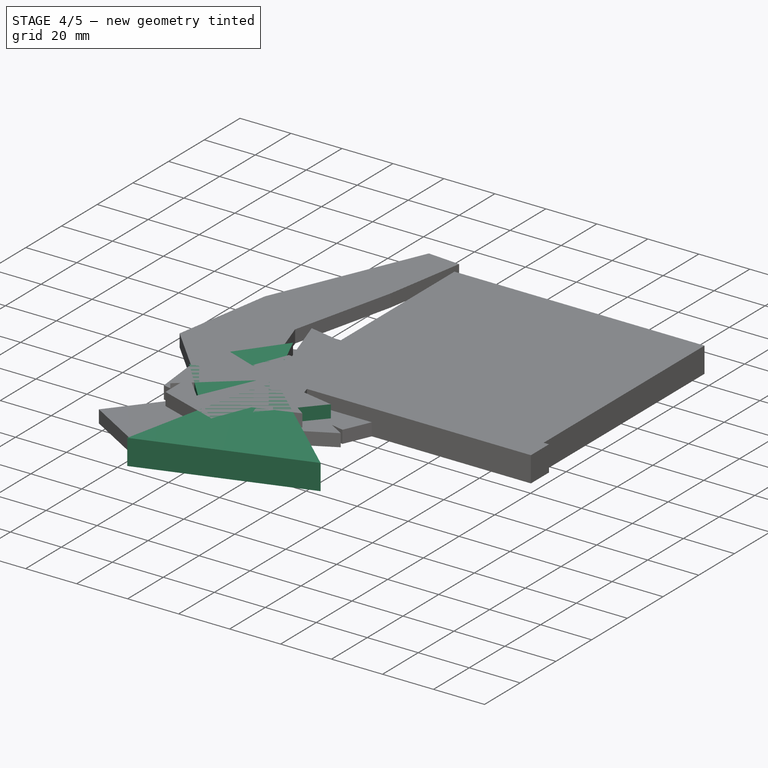
[diagram: stage 4 of 5 — iso view after this stage's code; geometry added in this stage tinted green]
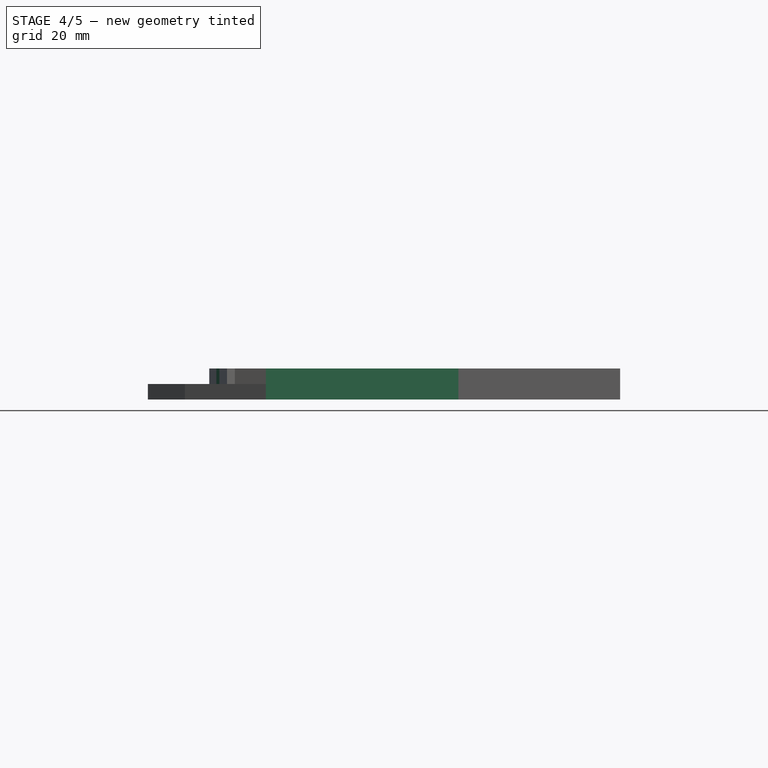
[diagram: stage 4 of 5 — front view after this stage's code; geometry added in this stage tinted green]
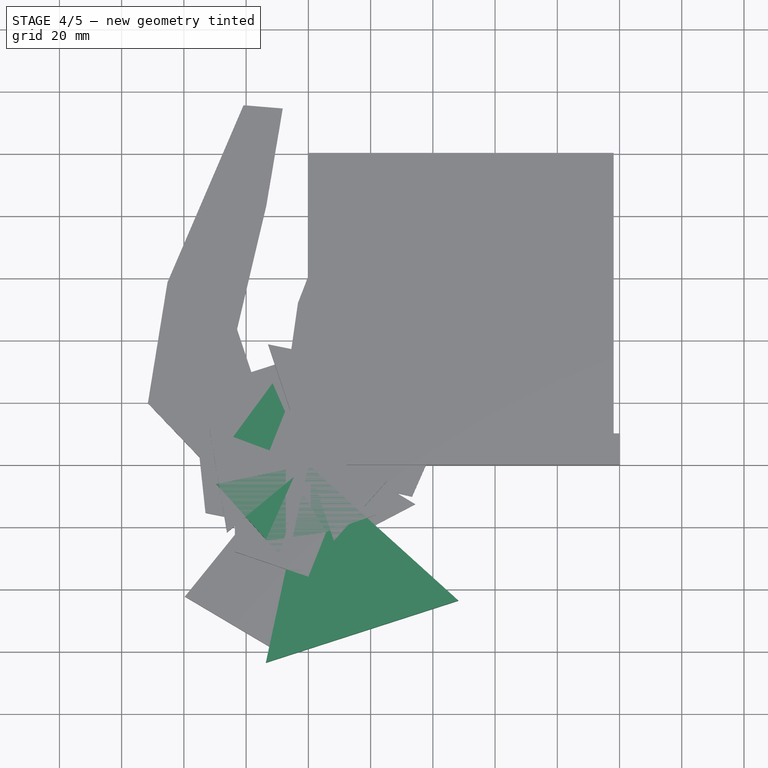
[diagram: stage 4 of 5 — top view after this stage's code; geometry added in this stage tinted green]
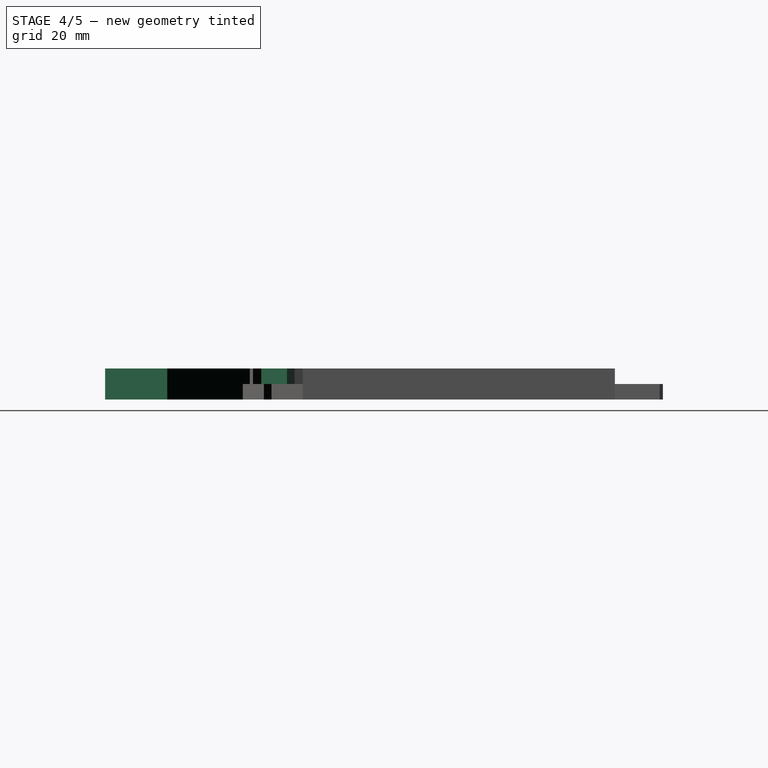
[diagram: stage 4 of 5 — right view after this stage's code; geometry added in this stage tinted green]
FEATURE [PartDesign::Body] Body006
  Group = -> [Sketch006,Pad006,Sketch007,Pad007]
  Origin = -> Origin006
  Placement = pos=(13.2288,17.2452,0) rot=(0,0,1;3.14159rad)
  Tip = -> Pad007
FEATURE [Sketcher::SketchObject] Sketch008
  FullyConstrained = false
  MapMode = 5
  Support = -> [XY_Plane007]
  sketch-geometry (11):
    g0: LineSegment StartX=7.00769 StartY=-11.7841 StartZ=0 EndX=11.7671 EndY=-2.86367 EndZ=0
    g1: LineSegment StartX=11.7671 StartY=-2.86367 StartZ=0 EndX=10.3741 EndY=7.1506 EndZ=0
    g2: LineSegment StartX=10.3741 StartY=7.1506 StartZ=0 EndX=3.36102 EndY=14.4336 EndZ=0
    g3: LineSegment StartX=3.36102 StartY=14.4336 StartZ=0 EndX=-6.59355 EndY=16.2034 EndZ=0
    g4: LineSegment StartX=-6.59355 StartY=16.2034 StartZ=0 EndX=-15.6873 EndY=11.7841 EndZ=0
    g5: LineSegment StartX=-15.6873 StartY=11.7841 StartZ=0 EndX=-20.4466 EndY=2.86367 EndZ=0
    g6: LineSegment StartX=-20.4466 StartY=2.86367 StartZ=0 EndX=-19.0537 EndY=-7.1506 EndZ=0
    g7: LineSegment StartX=-19.0537 StartY=-7.1506 StartZ=0 EndX=-12.0406 EndY=-14.4336 EndZ=0
    g8: LineSegment StartX=-12.0406 StartY=-14.4336 StartZ=0 EndX=-2.08601 EndY=-16.2034 EndZ=0
    g9: LineSegment StartX=-2.08601 StartY=-16.2034 StartZ=0 EndX=7.00769 EndY=-11.7841 EndZ=0
    g10: Circle CenterX=-4.33978 CenterY=0 CenterZ=0 NormalX=0 NormalY=0 NormalZ=1 AngleXU=0 Radius=16.3594
  constraints (22):
    c: Coincident(g0,g1)
    c: Coincident(g1,g2)
    c: Coincident(g2,g3)
    c: Coincident(g3,g4)
    c: Coincident(g4,g5)
    c: Coincident(g5,g6)
    c: Coincident(g6,g7)
    c: Coincident(g7,g8)
    c: Coincident(g8,g9)
    c: Coincident(g9,g0)
    c: Equal(g0, g1-g9) x9
    c: PointOnObject(g0,g10)
    c: PointOnObject(g1,g10)
    c: PointOnObject(g2,g10)
    c: PointOnObject(g3,g10)
    c: PointOnObject(g4,g10)
    c: PointOnObject(g5,g10)
    c: PointOnObject(g6,g10)
    c: PointOnObject(g7,g10)
    c: PointOnObject(g8,g10)
    c: PointOnObject(g9,g10)
    c: PointOnObject(g10,g-1)
FEATURE [PartDesign::Pad] Pad008
  Direction = (1,1,1)
  Length = 5
  Length2 = 100
  Profile = -> Sketch008
  Type = 0
FEATURE [PartDesign::Body] Body007
  Group = -> [Sketch008,Pad008]
  Origin = -> Origin007
  Placement = pos=(20.4466,16.2034,0) rot=(0,0,1;0rad)
  Tip = -> Pad008
FEATURE [Sketcher::SketchObject] Sketch009
  FullyConstrained = false
  MapMode = 5
  Support = -> [XY_Plane008]
  sketch-geometry (4):
    g0: LineSegment StartX=0 StartY=0 StartZ=0 EndX=45.9879 EndY=5.64868 EndZ=0
    g1: LineSegment StartX=45.9879 StartY=5.64868 StartZ=0 EndX=18.102 EndY=42.651 EndZ=0
    g2: LineSegment StartX=18.102 StartY=42.651 StartZ=0 EndX=0 EndY=0 EndZ=0
    g3: Circle CenterX=21.3633 CenterY=16.0999 CenterZ=0 NormalX=0 NormalY=0 NormalZ=1 AngleXU=0 Radius=26.7507
  constraints (9):
    c: Coincident(g0,g1)
    c: Coincident(g1,g2)
    c: Coincident(g2,g0)
    c: Equal(g0,g1)
    c: Equal(g0,g2)
    c: PointOnObject(g0,g3)
    c: PointOnObject(g1,g3)
    c: PointOnObject(g2,g3)
    c: Coincident(g2,g-1)
FEATURE [PartDesign::Pad] Pad009
  Direction = (1,1,1)
  Length = 10
  Length2 = 100
  Profile = -> Sketch009
  Type = 0
FEATURE [Sketcher::SketchObject] Sketch010
  FullyConstrained = false
  MapMode = 5
  Support = -> [XY_Plane009]
  sketch-geometry (4):
    g0: LineSegment StartX=0 StartY=0 StartZ=0 EndX=-11.4951 EndY=26.2294 EndZ=0
    g1: LineSegment StartX=-11.4951 StartY=26.2294 StartZ=0 EndX=-28.4629 EndY=3.1596 EndZ=0
    g2: LineSegment StartX=-28.4629 StartY=3.1596 StartZ=0 EndX=0 EndY=0 EndZ=0
    g3: Circle CenterX=-13.3193 CenterY=9.79632 CenterZ=0 NormalX=0 NormalY=0 NormalZ=1 AngleXU=0 Radius=16.534
  constraints (9):
    c: Coincident(g0,g1)
    c: Coincident(g1,g2)
    c: Coincident(g2,g0)
    c: Equal(g0,g1)
    c: Equal(g0,g2)
    c: PointOnObject(g0,g3)
    c: PointOnObject(g1,g3)
    c: PointOnObject(g2,g3)
    c: Coincident(g2,g-1)
FEATURE [Sketcher::SketchObject] Sketch011
  FullyConstrained = false
  MapMode = 5
  Support = -> [XY_Plane013]
  sketch-geometry (4):
    g0: LineSegment StartX=0 StartY=0 StartZ=0 EndX=8.20584 EndY=-24.4653 EndZ=0
    g1: LineSegment StartX=8.20584 StartY=-24.4653 StartZ=0 EndX=25.2905 EndY=-5.12617 EndZ=0
    g2: LineSegment StartX=25.2905 StartY=-5.12617 StartZ=0 EndX=0 EndY=0 EndZ=0
    g3: Circle CenterX=11.1654 CenterY=-9.86381 CenterZ=0 NormalX=0 NormalY=0 NormalZ=1 AngleXU=0 Radius=14.8984
  constraints (9):
    c: Coincident(g0,g1)
    c: Coincident(g1,g2)
    c: Coincident(g2,g0)
    c: Equal(g0,g1)
    c: Equal(g0,g2)
    c: PointOnObject(g0,g3)
    c: PointOnObject(g1,g3)
    c: PointOnObject(g2,g3)
    c: Coincident(g2,g-1)
FEATURE [PartDesign::Pad] Pad010
  Direction = (1,1,1)
  Length = 10
  Length2 = 100
  Profile = -> Sketch011
  Type = 0
FEATURE [Sketcher::SketchObject] Sketch012
  FullyConstrained = false
  MapMode = 5
  Support = -> [XY_Plane010]
  sketch-geometry (4):
    g0: LineSegment StartX=0 StartY=0 StartZ=0 EndX=27.0734 EndY=30.5483 EndZ=0
    g1: LineSegment StartX=27.0734 StartY=30.5483 StartZ=0 EndX=-12.9189 EndY=38.7204 EndZ=0
    g2: LineSegment StartX=-12.9189 StartY=38.7204 StartZ=0 EndX=0 EndY=0 EndZ=0
    g3: Circle CenterX=4.71818 CenterY=23.0896 CenterZ=0 NormalX=0 NormalY=0 NormalZ=1 AngleXU=0 Radius=23.5667
  constraints (9):
    c: Coincident(g0,g1)
    c: Coincident(g1,g2)
    c: Coincident(g2,g0)
    c: Equal(g0,g1)
    c: Equal(g0,g2)
    c: PointOnObject(g0,g3)
    c: PointOnObject(g1,g3)
    c: PointOnObject(g2,g3)
    c: Coincident(g2,g-1)
FEATURE [PartDesign::Pad] Pad011
  Direction = (1,1,1)
  Length = 10
  Length2 = 100
  Profile = -> Sketch012
  Type = 0
FEATURE [PartDesign::Body] Body009
  Group = -> [Sketch012,Pad011]
  Origin = -> Origin009
  Placement = pos=(12.9189,0,0) rot=(0,0,1;0rad)
  Tip = -> Pad011
FEATURE [Sketcher::SketchObject] Sketch013
  FullyConstrained = false
  MapMode = 5
  Support = -> [XY_Plane011]
  sketch-geometry (4):
    g0: LineSegment StartX=0 StartY=0 StartZ=0 EndX=-29.562 EndY=-6.18521 EndZ=0
    g1: LineSegment StartX=-29.562 StartY=-6.18521 StartZ=0 EndX=-9.42445 EndY=-28.6941 EndZ=0
    g2: LineSegment StartX=-9.42445 StartY=-28.6941 StartZ=0 EndX=0 EndY=0 EndZ=0
    g3: Circle CenterX=-12.9955 CenterY=-11.6264 CenterZ=0 NormalX=0 NormalY=0 NormalZ=1 AngleXU=0 Radius=17.4372
  constraints (9):
    c: Coincident(g0,g1)
    c: Coincident(g1,g2)
    c: Coincident(g2,g0)
    c: Equal(g0,g1)
    c: Equal(g0,g2)
    c: PointOnObject(g0,g3)
    c: PointOnObject(g1,g3)
    c: PointOnObject(g2,g3)
    c: Coincident(g2,g-1)
FEATURE [PartDesign::Pad] Pad012
  Direction = (1,1,1)
  Length = 10
  Length2 = 100
  Profile = -> Sketch013
  Type = 0
FEATURE [PartDesign::Body] Body010
  Group = -> [Sketch013,Pad012]
  Origin = -> Origin010
  Placement = pos=(29.562,28.6941,0) rot=(0,0,1;0rad)
  Tip = -> Pad012
FEATURE [Sketcher::SketchObject] Sketch014
  FullyConstrained = false
  MapMode = 5
  Support = -> [XY_Plane012]
  sketch-geometry (4):
    g0: LineSegment StartX=0 StartY=0 StartZ=0 EndX=-13.6603 EndY=-63.5488 EndZ=0
    g1: LineSegment StartX=-13.6603 StartY=-63.5488 StartZ=0 EndX=48.2047 EndY=-43.6046 EndZ=0
    g2: LineSegment StartX=48.2047 StartY=-43.6046 StartZ=0 EndX=0 EndY=0 EndZ=0
    g3: Circle CenterX=11.5148 CenterY=-35.7178 CenterZ=0 NormalX=0 NormalY=0 NormalZ=1 AngleXU=0 Radius=37.528
  constraints (9):
    c: Coincident(g0,g1)
    c: Coincident(g1,g2)
    c: Coincident(g2,g0)
    c: Equal(g0,g1)
    c: Equal(g0,g2)
    c: PointOnObject(g0,g3)
    c: PointOnObject(g1,g3)
    c: PointOnObject(g2,g3)
    c: Coincident(g2,g-1)
FEATURE [PartDesign::Pad] Pad013
  Direction = (1,1,1)
  Length = 10
  Length2 = 100
  Profile = -> Sketch014
  Type = 0
FEATURE [PartDesign::Body] Body011
  Group = -> [Sketch014,Pad013]
  Origin = -> Origin011
  Placement = pos=(13.6603,63.5488,0) rot=(0,0,1;0rad)
  Tip = -> Pad013
FEATURE [PartDesign::Body] Body012
  Group = -> [Sketch009,Pad009]
  Origin = -> Origin012
  Tip = -> Pad009
FEATURE [PartDesign::Pad] Pad014
  Direction = (1,1,1)
  Length = 10
  Length2 = 100
  Profile = -> Sketch010
  Type = 0
FEATURE [PartDesign::Body] Body008
  Group = -> [Sketch010,Pad014]
  Origin = -> Origin008
  Placement = pos=(28.4629,0,0) rot=(0,0,1;0rad)
  Tip = -> Pad014
FEATURE [PartDesign::Body] Body013
  Group = -> [Sketch011,Pad010]
  Origin = -> Origin013
  Placement = pos=(0,24.4653,0) rot=(0,0,1;0rad)
  Tip = -> Pad010
FEATURE [Sketcher::SketchObject] Sketch015
  FullyConstrained = false
  MapMode = 5
  Support = -> [XY_Plane014]
  sketch-geometry (4):
    g0: LineSegment StartX=0 StartY=0 StartZ=0 EndX=-31.8356 EndY=11.8118 EndZ=0
    g1: LineSegment StartX=-31.8356 StartY=11.8118 StartZ=0 EndX=-26.1471 EndY=-21.6645 EndZ=0
    g2: LineSegment StartX=-26.1471 StartY=-21.6645 StartZ=0 EndX=0 EndY=0 EndZ=0
    g3: Circle CenterX=-19.3275 CenterY=-3.28425 CenterZ=0 NormalX=0 NormalY=0 NormalZ=1 AngleXU=0 Radius=19.6046
  constraints (9):
    c: Coincident(g0,g1)
    c: Coincident(g1,g2)
    c: Coincident(g2,g0)
    c: Equal(g0,g1)
    c: Equal(g0,g2)
    c: PointOnObject(g0,g3)
    c: PointOnObject(g1,g3)
    c: PointOnObject(g2,g3)
    c: Coincident(g2,g-1)
FEATURE [PartDesign::Pad] Pad015
  Direction = (1,1,1)
  Length = 10
  Length2 = 100
  Profile = -> Sketch015
  Type = 0
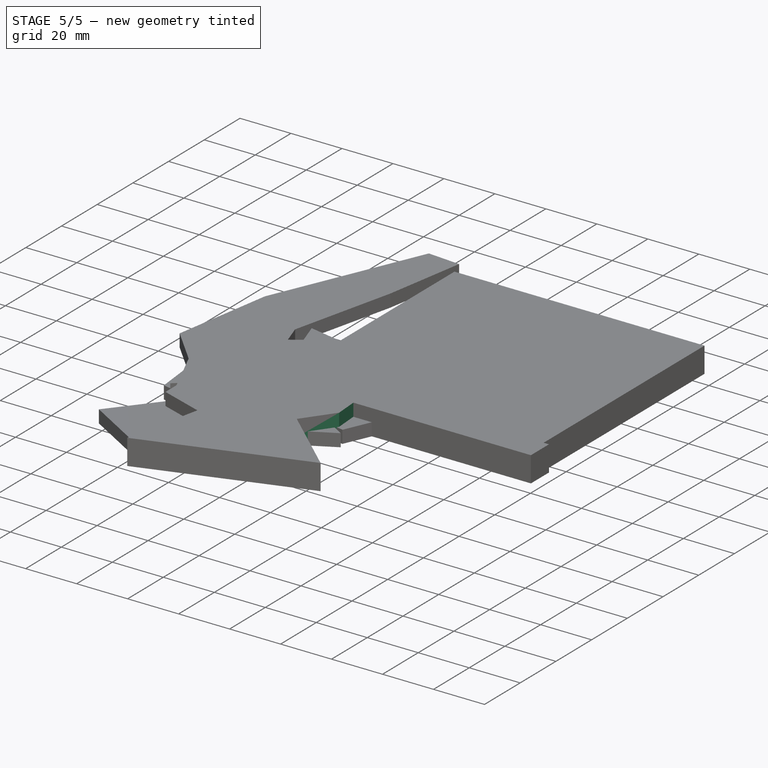
[diagram: stage 5 of 5 — iso view after this stage's code; geometry added in this stage tinted green]
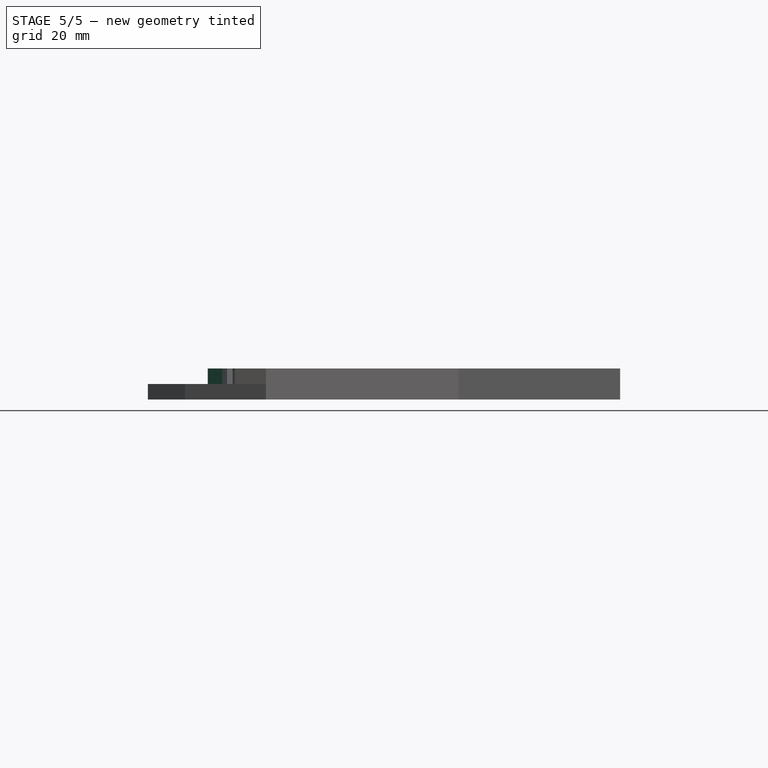
[diagram: stage 5 of 5 — front view after this stage's code; geometry added in this stage tinted green]
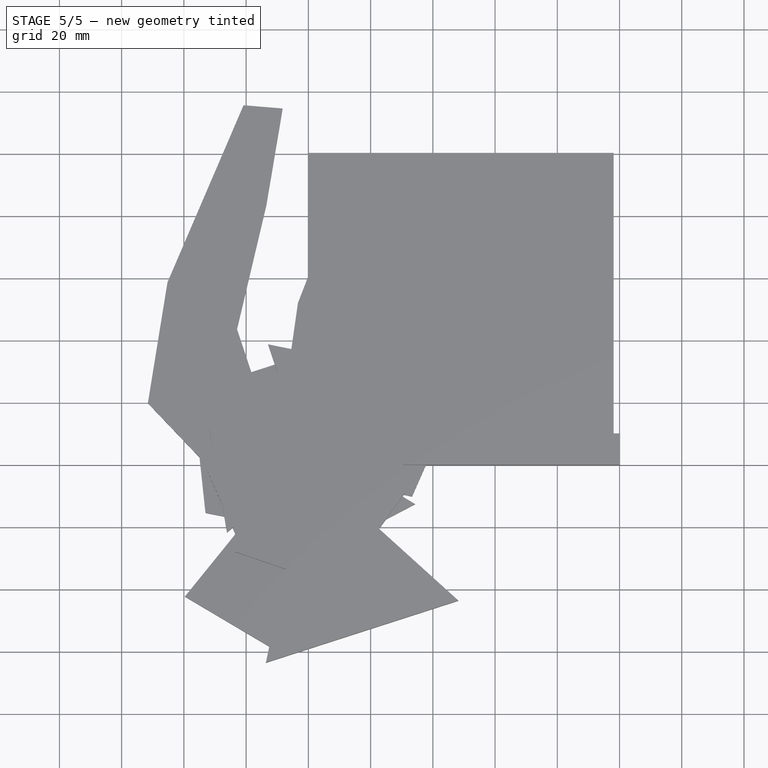
[diagram: stage 5 of 5 — top view after this stage's code; geometry added in this stage tinted green]
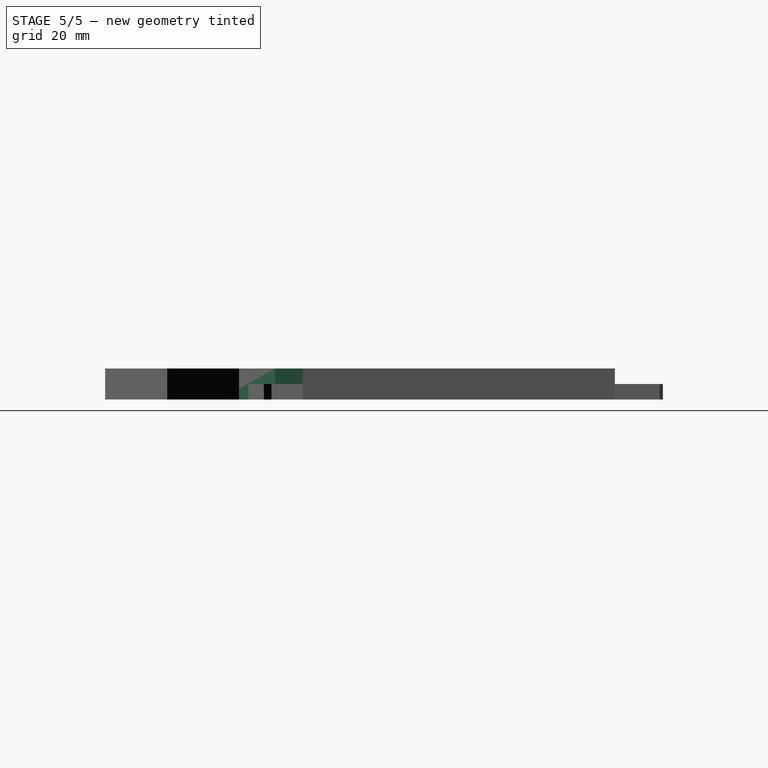
[diagram: stage 5 of 5 — right view after this stage's code; geometry added in this stage tinted green]
FEATURE [Sketcher::SketchObject] Sketch
  FullyConstrained = false
  MapMode = 5
  Support = -> [XY_Plane]
  sketch-geometry (10):
    g0: LineSegment StartX=18.1672 StartY=-26.824 StartZ=0 EndX=31.1591 EndY=-8.87074 EndZ=0
    g1: LineSegment StartX=31.1591 StartY=-8.87074 StartZ=0 EndX=29.5712 EndY=13.2333 EndZ=0
    g2: LineSegment StartX=29.5712 StartY=13.2333 StartZ=0 EndX=14.1467 EndY=29.1453 EndZ=0
    g3: LineSegment StartX=14.1467 StartY=29.1453 StartZ=0 EndX=-7.89726 EndY=31.4199 EndZ=0
    g4: LineSegment StartX=-7.89726 StartY=31.4199 StartZ=0 EndX=-26.246 EndY=18.9928 EndZ=0
    g5: LineSegment StartX=-26.246 StartY=18.9928 StartZ=0 EndX=-32.3139 EndY=-2.32127 EndZ=0
    g6: LineSegment StartX=-32.3139 StartY=-2.32127 StartZ=0 EndX=-23.2618 EndY=-22.5492 EndZ=0
    g7: LineSegment StartX=-23.2618 StartY=-22.5492 StartZ=0 EndX=-3.32525 EndY=-32.2261 EndZ=0
    g8: LineSegment StartX=-3.32525 StartY=-32.2261 StartZ=0 EndX=18.1672 EndY=-26.824 EndZ=0
    g9: Circle CenterX=0 CenterY=0 CenterZ=0 NormalX=0 NormalY=0 NormalZ=1 AngleXU=0 Radius=32.3972
  constraints (20):
    c: Coincident(g0,g1)
    c: Coincident(g1,g2)
    c: Coincident(g2,g3)
    c: Coincident(g3,g4)
    c: Coincident(g4,g5)
    c: Coincident(g5,g6)
    c: Coincident(g6,g7)
    c: Coincident(g7,g8)
    c: Coincident(g8,g0)
    c: Equal(g0, g1-g8) x8
    c: PointOnObject(g0,g9)
    c: PointOnObject(g1,g9)
    c: PointOnObject(g2,g9)
    c: PointOnObject(g3,g9)
    c: PointOnObject(g4,g9)
    c: PointOnObject(g5,g9)
    c: PointOnObject(g6,g9)
    c: PointOnObject(g7,g9)
    c: PointOnObject(g8,g9)
    c: Coincident(g9,g-1)
FEATURE [PartDesign::Pad] Pad
  Direction = (1,1,1)
  Length = 10
  Length2 = 100
  Profile = -> Sketch
  Type = 0
FEATURE [PartDesign::Body] Body
  Group = -> [Sketch,Pad]
  Origin = -> Origin
  Placement = pos=(32.3139,32.2261,0) rot=(0,0,1;0rad)
  Tip = -> Pad
FEATURE [Sketcher::SketchObject] Sketch001
  FullyConstrained = false
  MapMode = 5
  Support = -> [XY_Plane001]
  sketch-geometry (13):
    g0: LineSegment StartX=-14.1465 StartY=4.38587 StartZ=0 EndX=-14.4442 EndY=-3.27498 EndZ=0
    g1: LineSegment StartX=-14.4442 StartY=-3.27498 StartZ=0 EndX=-10.8715 EndY=-10.0583 EndZ=0
    g2: LineSegment StartX=-10.8715 StartY=-10.0583 StartZ=0 EndX=-4.38587 EndY=-14.1465 EndZ=0
    g3: LineSegment StartX=-4.38587 StartY=-14.1465 StartZ=0 EndX=3.27498 EndY=-14.4442 EndZ=0
    g4: LineSegment StartX=3.27498 StartY=-14.4442 StartZ=0 EndX=10.0583 EndY=-10.8715 EndZ=0
    g5: LineSegment StartX=10.0583 StartY=-10.8715 StartZ=0 EndX=14.1465 EndY=-4.38587 EndZ=0
    g6: LineSegment StartX=14.1465 StartY=-4.38587 StartZ=0 EndX=14.4442 EndY=3.27498 EndZ=0
    g7: LineSegment StartX=14.4442 StartY=3.27498 StartZ=0 EndX=10.8715 EndY=10.0583 EndZ=0
    g8: LineSegment StartX=10.8715 StartY=10.0583 StartZ=0 EndX=4.38587 EndY=14.1465 EndZ=0
    g9: LineSegment StartX=4.38587 StartY=14.1465 StartZ=0 EndX=-3.27498 EndY=14.4442 EndZ=0
    g10: LineSegment StartX=-3.27498 StartY=14.4442 StartZ=0 EndX=-10.0583 EndY=10.8715 EndZ=0
    g11: LineSegment StartX=-10.0583 StartY=10.8715 StartZ=0 EndX=-14.1465 EndY=4.38587 EndZ=0
    g12: Circle CenterX=0 CenterY=0 CenterZ=0 NormalX=0 NormalY=0 NormalZ=1 AngleXU=0 Radius=14.8108
  constraints (26):
    c: Coincident(g0,g1)
    c: Coincident(g1,g2)
    c: Coincident(g2,g3)
    c: Coincident(g3,g4)
    c: Coincident(g4,g5)
    c: Coincident(g5,g6)
    c: Coincident(g6,g7)
    c: Coincident(g7,g8)
    c: Coincident(g8,g9)
    c: Coincident(g9,g10)
    c: Coincident(g10,g11)
    c: Coincident(g11,g0)
    c: Equal(g0, g1-g11) x11
    c: PointOnObject(g0,g12)
    c: PointOnObject(g1,g12)
    c: PointOnObject(g2,g12)
    c: PointOnObject(g3,g12)
    c: PointOnObject(g4,g12)
    c: PointOnObject(g5,g12)
    c: PointOnObject(g6,g12)
    c: PointOnObject(g7,g12)
    c: PointOnObject(g8,g12)
    c: PointOnObject(g9,g12)
    c: PointOnObject(g10,g12)
    c: PointOnObject(g11,g12)
    c: Coincident(g12,g-1)
FEATURE [PartDesign::Pad] Pad001
  Direction = (1,1,1)
  Length = 10
  Length2 = 100
  Profile = -> Sketch001
  Type = 0
FEATURE [PartDesign::Body] Body001
  Group = -> [Sketch001,Pad001]
  Origin = -> Origin001
  Placement = pos=(14.4442,14.4442,0) rot=(0,0,1;0rad)
  Tip = -> Pad001
FEATURE [Sketcher::SketchObject] Sketch002
  FullyConstrained = false
  MapMode = 5
  Support = -> [XY_Plane002]
  sketch-geometry (16):
    g0: LineSegment StartX=5.16874 StartY=19.6609 StartZ=0 EndX=-4.12593 EndY=19.8825 EndZ=0
    g1: LineSegment StartX=-4.12593 StartY=19.8825 StartZ=0 EndX=-12.7072 EndY=16.3045 EndZ=0
    g2: LineSegment StartX=-12.7072 StartY=16.3045 StartZ=0 EndX=-19.0913 EndY=9.54558 EndZ=0
    g3: LineSegment StartX=-19.0913 StartY=9.54558 StartZ=0 EndX=-22.1743 EndY=0.774318 EndZ=0
    g4: LineSegment StartX=-22.1743 StartY=0.774318 StartZ=0 EndX=-21.4232 EndY=-8.4926 EndZ=0
    g5: LineSegment StartX=-21.4232 StartY=-8.4926 StartZ=0 EndX=-16.9678 EndY=-16.6528 EndZ=0
    g6: LineSegment StartX=-16.9678 StartY=-16.6528 StartZ=0 EndX=-9.57852 EndY=-22.2954 EndZ=0
    g7: LineSegment StartX=-9.57852 StartY=-22.2954 StartZ=0 EndX=-0.533051 EndY=-24.4447 EndZ=0
    g8: LineSegment StartX=-0.533051 StartY=-24.4447 StartZ=0 EndX=8.60459 EndY=-22.7291 EndZ=0
    g9: LineSegment StartX=8.60459 StartY=-22.7291 StartZ=0 EndX=16.2544 EndY=-17.4451 EndZ=0
    g10: LineSegment StartX=16.2544 StartY=-17.4451 StartZ=0 EndX=21.0937 EndY=-9.50653 EndZ=0
    g11: LineSegment StartX=21.0937 StartY=-9.50653 StartZ=0 EndX=22.2857 EndY=-0.285945 EndZ=0
    g12: LineSegment StartX=22.2857 StartY=-0.285945 StartZ=0 EndX=19.6243 EndY=8.6223 EndZ=0
    g13: LineSegment StartX=19.6243 StartY=8.6223 StartZ=0 EndX=13.5697 EndY=15.6779 EndZ=0
    g14: LineSegment StartX=13.5697 StartY=15.6779 StartZ=0 EndX=5.16874 EndY=19.6609 EndZ=0
    g15: Circle CenterX=0 CenterY=-2.09228 CenterZ=0 NormalX=0 NormalY=0 NormalZ=1 AngleXU=0 Radius=22.3588
  constraints (32):
    c: Coincident(g0,g1)
    c: Coincident(g1,g2)
    c: Coincident(g2,g3)
    c: Coincident(g3,g4)
    c: Coincident(g4,g5)
    c: Coincident(g5,g6)
    c: Coincident(g6,g7)
    c: Coincident(g7,g8)
    c: Coincident(g8,g9)
    c: Coincident(g9,g10)
    c: Coincident(g10,g11)
    c: Coincident(g11,g12)
    c: Coincident(g12,g13)
    c: Coincident(g13,g14)
    c: Coincident(g14,g0)
    c: Equal(g0, g1-g14) x14
    c: PointOnObject(g0,g15)
    c: PointOnObject(g1,g15)
    c: PointOnObject(g2,g15)
    c: PointOnObject(g3,g15)
    c: PointOnObject(g4,g15)
    c: PointOnObject(g5,g15)
    c: PointOnObject(g6,g15)
    c: PointOnObject(g7,g15)
    c: PointOnObject(g8,g15)
    c: PointOnObject(g9,g15)
    c: PointOnObject(g10,g15)
    c: PointOnObject(g11,g15)
    c: PointOnObject(g12,g15)
    c: PointOnObject(g13,g15)
    c: PointOnObject(g14,g15)
    c: PointOnObject(g15,g-2)
FEATURE [PartDesign::Pad] Pad002
  Direction = (1,1,1)
  Length = 10
  Length2 = 100
  Profile = -> Sketch002
  Type = 0
FEATURE [PartDesign::Body] Body002
  Group = -> [Sketch002,Pad002]
  Origin = -> Origin002
  Placement = pos=(22.1743,24.4447,0) rot=(0,0,1;0rad)
  Tip = -> Pad002
FEATURE [Sketcher::SketchObject] Sketch003
  FullyConstrained = false
  MapMode = 5
  Support = -> [XY_Plane003]
  sketch-geometry (4):
    g0: LineSegment StartX=7.39952 StartY=7.66461 StartZ=0 EndX=-10.3375 EndY=2.57587 EndZ=0
    g1: LineSegment StartX=-10.3375 StartY=2.57587 StartZ=0 EndX=2.93799 EndY=-10.2405 EndZ=0
    g2: LineSegment StartX=2.93799 StartY=-10.2405 StartZ=0 EndX=7.39952 EndY=7.66461 EndZ=0
    g3: Circle CenterX=0 CenterY=0 CenterZ=0 NormalX=0 NormalY=0 NormalZ=1 AngleXU=0 Radius=10.6536
  constraints (9):
    c: Coincident(g0,g1)
    c: Coincident(g1,g2)
    c: Coincident(g2,g0)
    c: Equal(g0,g1)
    c: Equal(g0,g2)
    c: PointOnObject(g0,g3)
    c: PointOnObject(g1,g3)
    c: PointOnObject(g2,g3)
    c: Coincident(g3,g-1)
FEATURE [PartDesign::Pad] Pad003
  Direction = (1,1,1)
  Length = 5
  Length2 = 100
  Profile = -> Sketch003
  Type = 0
FEATURE [PartDesign::Body] Body003
  Group = -> [Sketch003,Pad003]
  Origin = -> Origin003
  Placement = pos=(10.3375,10.2405,0) rot=(0,0,1;0rad)
  Tip = -> Pad003
FEATURE [Sketcher::SketchObject] Sketch004
  FullyConstrained = false
  MapMode = 5
  Support = -> [XY_Plane004]
  sketch-geometry (4):
    g0: LineSegment StartX=0 StartY=10.2596 StartZ=0 EndX=-8.88503 EndY=-5.12978 EndZ=0
    g1: LineSegment StartX=-8.88503 StartY=-5.12978 StartZ=0 EndX=8.88503 EndY=-5.12978 EndZ=0
    g2: LineSegment StartX=8.88503 StartY=-5.12978 StartZ=0 EndX=0 EndY=10.2596 EndZ=0
    g3: Circle CenterX=0 CenterY=0 CenterZ=0 NormalX=0 NormalY=0 NormalZ=1 AngleXU=0 Radius=10.2596
  constraints (10):
    c: Coincident(g0,g1)
    c: Coincident(g1,g2)
    c: Coincident(g2,g0)
    c: Equal(g0,g1)
    c: Equal(g0,g2)
    c: PointOnObject(g0,g3)
    c: PointOnObject(g1,g3)
    c: PointOnObject(g2,g3)
    c: Coincident(g3,g-1)
    c: PointOnObject(g2,g-2)
FEATURE [PartDesign::Pad] Pad004
  Direction = (1,1,1)
  Length = 5
  Length2 = 100
  Profile = -> Sketch004
  Type = 0
FEATURE [PartDesign::Body] Body004
  Group = -> [Sketch004,Pad004]
  Origin = -> Origin004
  Placement = pos=(8.88503,5.12978,0) rot=(0,0,1;0rad)
  Tip = -> Pad004
FEATURE [Sketcher::SketchObject] Sketch005
  FullyConstrained = false
  MapMode = 5
  Support = -> [XY_Plane005]
  sketch-geometry (7):
    g0: LineSegment StartX=8.91799 StartY=0 StartZ=0 EndX=13.3377 EndY=8.72222 EndZ=0
    g1: LineSegment StartX=13.3377 StartY=8.72222 StartZ=0 EndX=4.07736 EndY=17.1407 EndZ=0
    g2: LineSegment StartX=4.07736 StartY=17.1407 StartZ=0 EndX=-8.0242 EndY=17.1407 EndZ=0
    g3: LineSegment StartX=-8.0242 StartY=17.1407 StartZ=0 EndX=-17.6002 EndY=1.77698 EndZ=0
    g4: LineSegment StartX=-17.6002 StartY=1.77698 StartZ=0 EndX=-4.76204 EndY=-10.8507 EndZ=0
    g5: LineSegment StartX=-4.76204 StartY=-10.8507 StartZ=0 EndX=0.920433 EndY=-10.8507 EndZ=0
    g6: LineSegment StartX=0.920433 StartY=-10.8507 StartZ=0 EndX=8.91799 EndY=0 EndZ=0
  constraints (10):
    c: PointOnObject(g0,g-1)
    c: Coincident(g0,g1)
    c: Coincident(g1,g2)
    c: Horizontal(g2)
    c: Coincident(g2,g3)
    c: Coincident(g3,g4)
    c: Coincident(g4,g5)
    c: Horizontal(g5)
    c: Coincident(g5,g6)
    c: Coincident(g6,g0)
FEATURE [PartDesign::Pad] Pad005
  Direction = (1,1,1)
  Length = 5
  Length2 = 100
  Profile = -> Sketch005
  Type = 0
FEATURE [PartDesign::Body] Body005
  Group = -> [Sketch005,Pad005]
  Origin = -> Origin005
  Placement = pos=(17.6002,10.8507,0) rot=(0,0,1;0rad)
  Tip = -> Pad005
FEATURE [Sketcher::SketchObject] Sketch006
  FullyConstrained = false
  MapMode = 5
  Support = -> [XY_Plane006]
  sketch-geometry (4):
    g0: LineSegment StartX=-10.5155 StartY=8.31443 StartZ=0 EndX=6.81498 EndY=8.31443 EndZ=0
    g1: LineSegment StartX=6.81498 StartY=8.31443 StartZ=0 EndX=6.81498 EndY=-6.67411 EndZ=0
    g2: LineSegment StartX=6.81498 StartY=-6.67411 StartZ=0 EndX=-10.5155 EndY=-6.67411 EndZ=0
    g3: LineSegment StartX=-10.5155 StartY=-6.67411 StartZ=0 EndX=-10.5155 EndY=8.31443 EndZ=0
  constraints (8):
    c: Coincident(g0,g1)
    c: Coincident(g1,g2)
    c: Coincident(g2,g3)
    c: Coincident(g3,g0)
    c: Horizontal(g0)
    c: Horizontal(g2)
    c: Vertical(g1)
    c: Vertical(g3)
FEATURE [PartDesign::Pad] Pad006
  Direction = (1,1,1)
  Length = 10
  Length2 = 100
  Profile = -> Sketch006
  Type = 0
FEATURE [Sketcher::SketchObject] Sketch007
  FullyConstrained = false
  MapMode = 5
  Support = -> [XY_Plane006]
  sketch-geometry (16):
    g0: LineSegment StartX=10.0196 StartY=10.4579 StartZ=0 EndX=4.57389 EndY=15.1624 EndZ=0
    g1: LineSegment StartX=4.57389 StartY=15.1624 StartZ=0 EndX=-2.31456 EndY=17.2452 EndZ=0
    g2: LineSegment StartX=-2.31456 StartY=17.2452 StartZ=0 EndX=-9.45463 EndY=16.3462 EndZ=0
    g3: LineSegment StartX=-9.45463 StartY=16.3462 StartZ=0 EndX=-15.6117 EndY=12.6207 EndZ=0
    g4: LineSegment StartX=-15.6117 StartY=12.6207 StartZ=0 EndX=-19.7213 EndY=6.71307 EndZ=0
    g5: LineSegment StartX=-19.7213 StartY=6.71307 StartZ=0 EndX=-21.0726 EndY=-0.355362 EndZ=0
    g6: LineSegment StartX=-21.0726 StartY=-0.355362 StartZ=0 EndX=-19.4322 EndY=-7.36235 EndZ=0
    g7: LineSegment StartX=-19.4322 StartY=-7.36235 StartZ=0 EndX=-15.0836 EndY=-13.0963 EndZ=0
    g8: LineSegment StartX=-15.0836 StartY=-13.0963 StartZ=0 EndX=-8.7787 EndY=-16.5658 EndZ=0
    g9: LineSegment StartX=-8.7787 StartY=-16.5658 StartZ=0 EndX=-1.60773 EndY=-17.1709 EndZ=0
    g10: LineSegment StartX=-1.60773 StartY=-17.1709 StartZ=0 EndX=5.1894 EndY=-14.807 EndZ=0
    g11: LineSegment StartX=5.1894 StartY=-14.807 StartZ=0 EndX=10.4374 EndY=-9.88287 EndZ=0
    g12: LineSegment StartX=10.4374 StartY=-9.88287 StartZ=0 EndX=13.2288 EndY=-3.24987 EndZ=0
    g13: LineSegment StartX=13.2288 StartY=-3.24987 StartZ=0 EndX=13.0811 EndY=3.94506 EndZ=0
    g14: LineSegment StartX=13.0811 StartY=3.94506 StartZ=0 EndX=10.0196 EndY=10.4579 EndZ=0
    g15: Circle CenterX=-3.76979 CenterY=0 CenterZ=0 NormalX=0 NormalY=0 NormalZ=1 AngleXU=0 Radius=17.3065
  constraints (32):
    c: Coincident(g0,g1)
    c: Coincident(g1,g2)
    c: Coincident(g2,g3)
    c: Coincident(g3,g4)
    c: Coincident(g4,g5)
    c: Coincident(g5,g6)
    c: Coincident(g6,g7)
    c: Coincident(g7,g8)
    c: Coincident(g8,g9)
    c: Coincident(g9,g10)
    c: Coincident(g10,g11)
    c: Coincident(g11,g12)
    c: Coincident(g12,g13)
    c: Coincident(g13,g14)
    c: Coincident(g14,g0)
    c: Equal(g0, g1-g14) x14
    c: PointOnObject(g0,g15)
    c: PointOnObject(g1,g15)
    c: PointOnObject(g2,g15)
    c: PointOnObject(g3,g15)
    c: PointOnObject(g4,g15)
    c: PointOnObject(g5,g15)
    c: PointOnObject(g6,g15)
    c: PointOnObject(g7,g15)
    c: PointOnObject(g8,g15)
    c: PointOnObject(g9,g15)
    c: PointOnObject(g10,g15)
    c: PointOnObject(g11,g15)
    c: PointOnObject(g12,g15)
    c: PointOnObject(g13,g15)
    c: PointOnObject(g14,g15)
    c: PointOnObject(g15,g-1)
FEATURE [PartDesign::Pad] Pad007
  BaseFeature = -> Pad006
  Direction = (1,1,1)
  Length = 5
  Length2 = 100
  Profile = -> Sketch007
  Type = 0
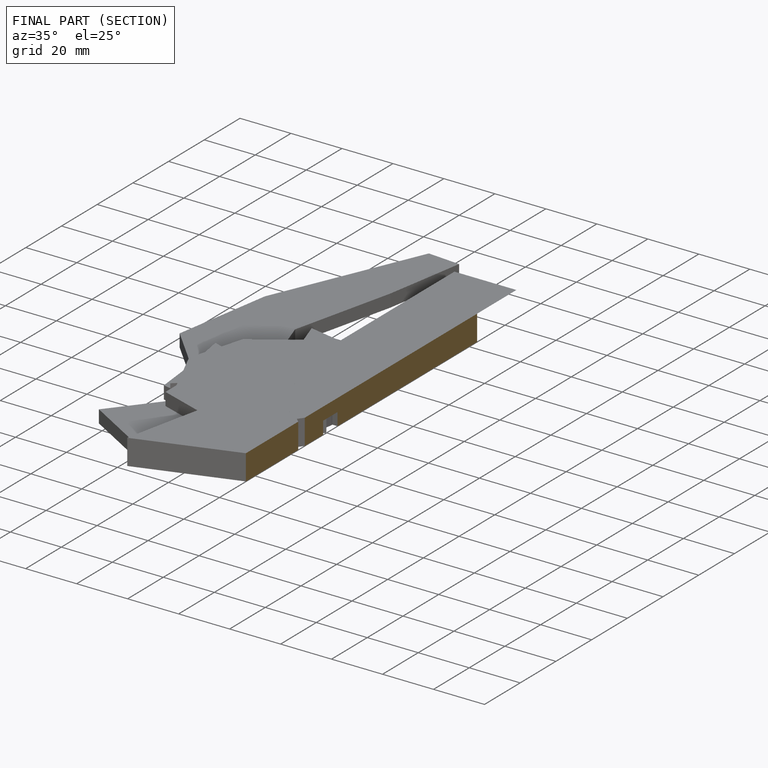
[diagram: finished part — half-section view (interior)]
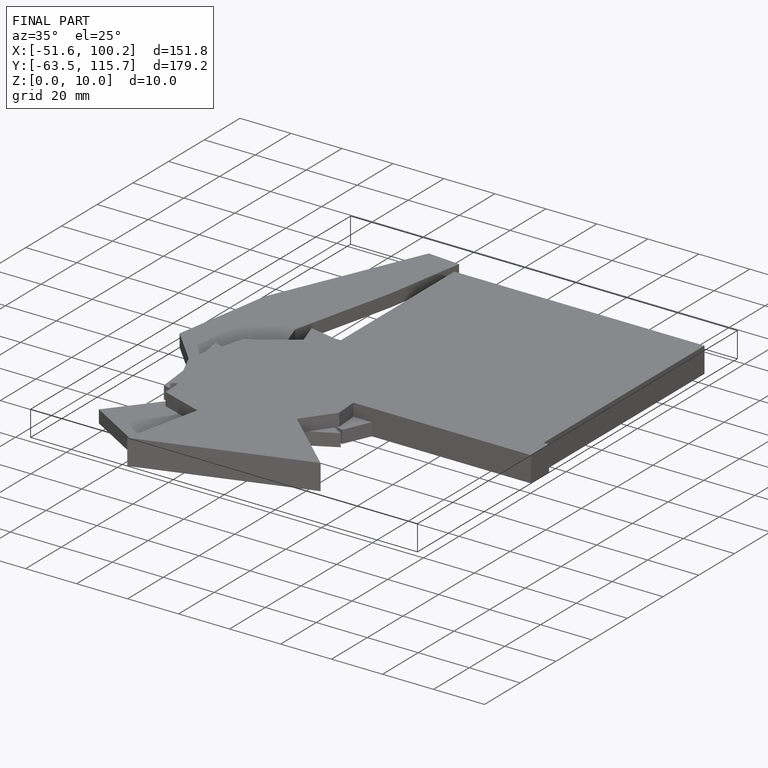
[diagram: finished part — iso view with bounding-box wireframe]
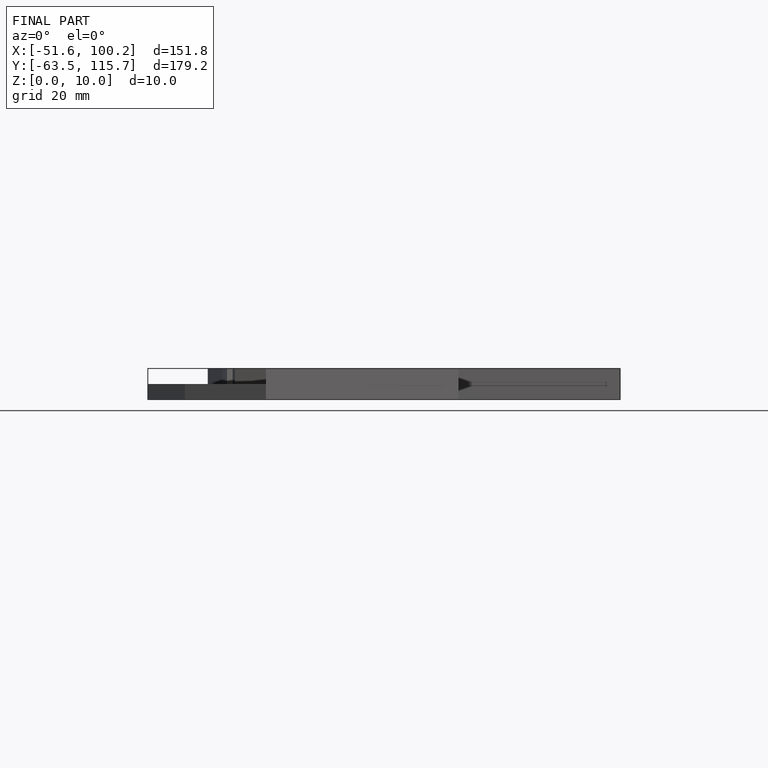
[diagram: finished part — front view with bounding-box wireframe]
